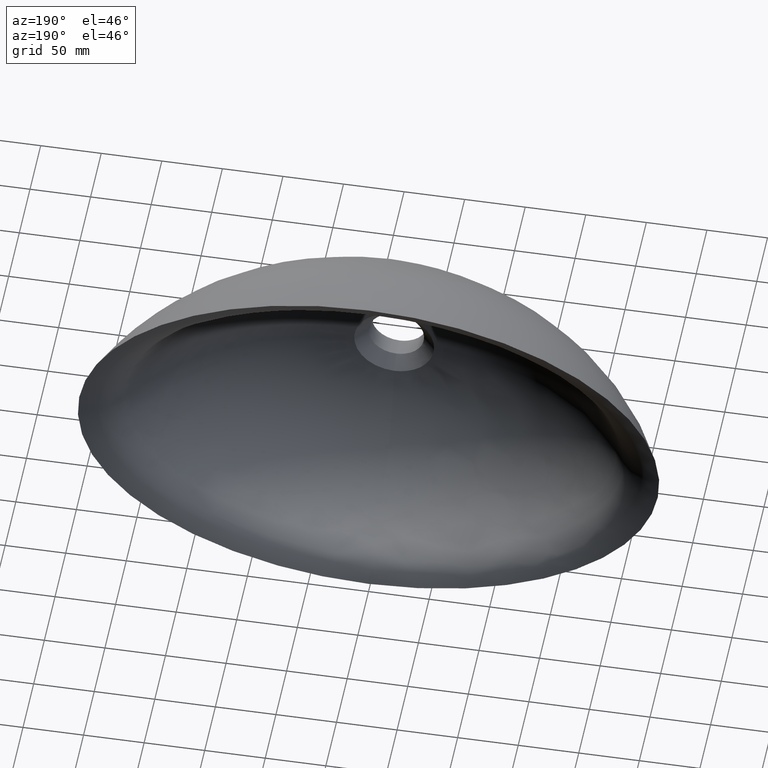
[diagram: clean part render]
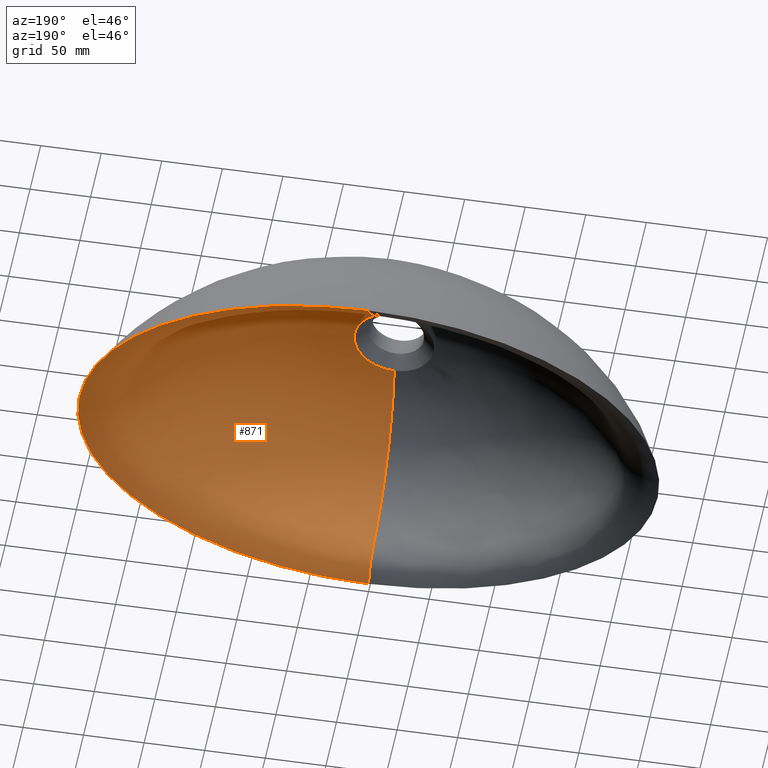
[diagram: same view with one face highlighted and labeled with its STEP entity id]
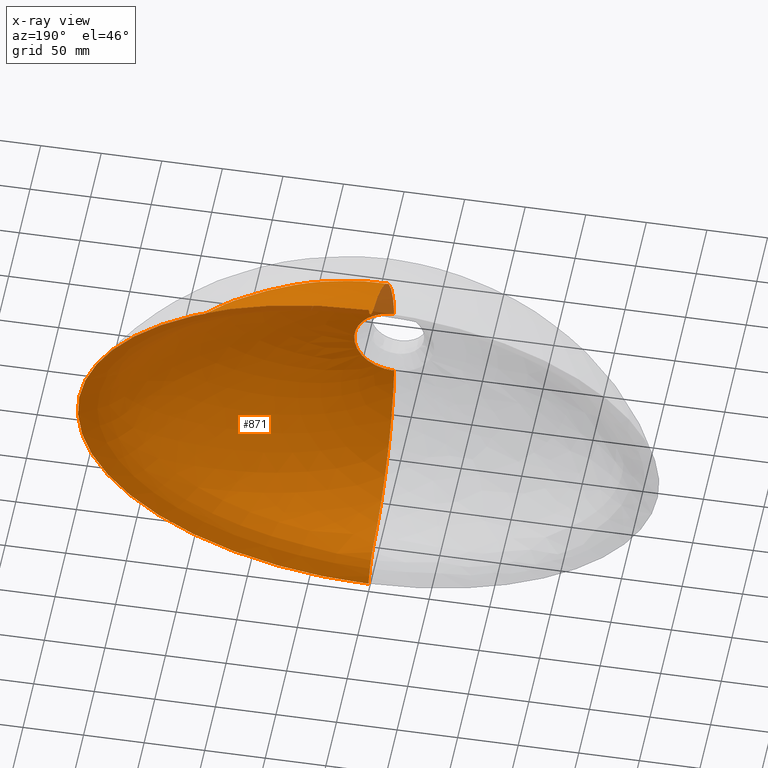
[diagram: x-ray of the same camera — body ghosted, the highlighted face saturated]
A machine part, auxiliary view. The second image highlights one B-rep face of the part: STEP entity #871.
The next image is the same camera in x-ray: the body ghosted, the highlighted face saturated — about 1% of this face is hidden behind the body in this view.
In plain terms, the highlighted face is a freeform B-spline surface patch.
Its self-contained STEP definition (entity closure, byte-faithful):
#10 = EDGE_CURVE ( 'NONE', #279, #1690, #1782, .T. ) ;
#22 = CARTESIAN_POINT ( 'NONE',  ( -1.320558246087344400E-013, -89.69102712270525000, 100.8377639535116500 ) ) ;
#36 = CARTESIAN_POINT ( 'NONE',  ( -1.595945597898662500E-013, -76.00668505586746400, 113.7130366713541600 ) ) ;
#68 = CARTESIAN_POINT ( 'NONE',  ( -3.118165448068310800E-013, 0.0000000000000000000, 160.0000000000000300 ) ) ;
#72 = CARTESIAN_POINT ( 'NONE',  ( 119.2038032442633000, -0.7541668695496025500, 137.9308143298175400 ) ) ;
#87 = CARTESIAN_POINT ( 'NONE',  ( -2.174909558005921900E-013, -43.38688400576848600, 132.4685475660608100 ) ) ;
#205 = CARTESIAN_POINT ( 'NONE',  ( -2.057815723377487400E-013, -60.46366696049965100, 124.3420252924159500 ) ) ;
#211 = CARTESIAN_POINT ( 'NONE',  ( -5.448115916739659800E-015, -120.0000000000000300, 33.00000000000000000 ) ) ;
#279 = VERTEX_POINT ( 'NONE', #2513 ) ;
#331 = CARTESIAN_POINT ( 'NONE',  ( -7.546047120499110900E-014, -110.3461389781540400, 69.53193003429275600 ) ) ;
#403 = CARTESIAN_POINT ( 'NONE',  ( -5.448115916739659800E-015, -120.0000000000000300, 33.00000000000000000 ) ) ;
#415 = CARTESIAN_POINT ( 'NONE',  ( 20.40196181145767100, -60.47735291521285500, 123.7769812046096300 ) ) ;
#490 = CARTESIAN_POINT ( 'NONE',  ( -116.5728268300296500, -2.451778030822814100, -134.4532953729050500 ) ) ;
#511 = CARTESIAN_POINT ( 'NONE',  ( -5.448115916739659800E-015, -120.0000000000000300, 33.00000000000000000 ) ) ;
#524 = CARTESIAN_POINT ( 'NONE',  ( -165.3181532844419300, -2.226490083097242500, -109.7495796190768100 ) ) ;
#529 = EDGE_CURVE ( 'NONE', #3196, #2507, #2951, .T. ) ;
#537 = CARTESIAN_POINT ( 'NONE',  ( -4.971068145928711400E-010, 0.0000000000000000000, -160.0000000000000300 ) ) ;
#634 = B_SPLINE_SURFACE_WITH_KNOTS ( 'NONE', 3, 3, ( 
 ( #3137, #3124, #3215, #1276, #1773, #3212, #2265, #2077, #2310, #2297, #1861, #2828, #2923, #2898, #1890, #2804, #2932, #2302, #3112, #3110, #3119, #3116, #2276, #2260, #1728, #1729, #2319, #1922, #783, #1963, #2358 ),
 ( #3229, #1844, #2094, #1865, #3178, #1696, #2389, #2603, #2084, #1899, #3049, #2388, #2450, #2371, #1964, #2066, #3179, #2101, #2193, #2362, #2242, #2377, #1864, #2381, #1867, #72, #2742, #2438, #2109, #2278, #2969 ),
 ( #1295, #2271, #1626, #1621, #1660, #1530, #1042, #1263, #878, #1206, #1254, #1103, #524, #490, #1260, #3230, #3201, #3194, #3192, #3199, #3188, #3186, #3191, #3181, #3175, #3173, #3168, #3165, #3162, #3102, #3100 ),
 ( #3095, #3093, #3086, #3083, #3089, #3080, #1815, #2352, #3224, #3144, #1718, #1645, #3071, #3067, #3063, #3060, #3059, #3106, #3054, #3050, #3042, #3037, #3036, #3033, #3029, #3028, #3022, #3018, #3017, #3009, #3008 ),
 ( #2999, #2995, #2994, #2991, #2981, #2978, #2970, #2967, #2965, #2959, #2954, #2953, #2947, #2945, #2940, #2936, #2935, #2930, #2919, #2918, #2915, #2913, #2908, #2904, #2903, #2900, #2892, #2888, #2884, #2875, #2873 ),
 ( #2867, #2864, #2861, #2855, #2850, #2848, #2844, #2841, #2839, #2835, #2832, #2826, #2822, #2819, #2816, #2726, #2814, #2809, #2802, #2798, #2796, #2793, #2792, #2785, #2781, #2779, #2772, #2768, #2762, #2759, #2758 ),
 ( #2748, #2747, #2738, #2737, #2728, #2725, #2717, #2713, #2712, #2701, #2700, #2697, #2691, #2688, #2686, #2684, #2680, #2677, #2676, #2673, #2671, #2666, #2663, #2661, #2659, #2656, #2653, #2652, #2650, #2648, #2644 ),
 ( #2640, #2639, #2635, #2633, #2628, #2625, #2624, #2620, #2615, #2612, #2610, #2608, #2600, #2599, #2594, #2591, #2589, #2578, #2574, #2569, #2567, #2562, #2558, #2554, #2552, #2547, #2543, #2539, #2534, #2531, #2528 ),
 ( #2526, #2521, #2517, #2512, #2504, #2499, #2498, #2492, #2488, #2486, #2479, #2476, #2475, #2466, #2462, #2454, #2449, #2442, #2437, #2430, #2427, #2426, #2419, #2415, #2414, #2403, #2402, #2399, #2397, #2387, #2385 ),
 ( #2378, #2373, #2365, #2361, #2356, #2348, #2347, #2345, #2343, #2339, #2334, #2332, #2327, #2321, #2308, #2299, #2288, #2281, #2253, #2248, #2244, #2237, #2234, #2231, #2226, #2220, #2212, #2201, #1704, #1881, #2218 ),
 ( #2132, #1612, #1806, #2188, #2189, #1761, #2081, #1537, #2070, #2072, #2097, #2105, #1541, #2119, #2882, #1886, #2052, #1495, #2088, #1676, #2080, #1528, #1565, #1450, #1487, #1714, #2114, #415, #2171, #1852, #1596 ),
 ( #1817, #1554, #2040, #1571, #1625, #1583, #1560, #1957, #1953, #1841, #2093, #2127, #1569, #1607, #1616, #2035, #2034, #1996, #1599, #2023, #2009, #1988, #2025, #2030, #1979, #1994, #2021, #2007, #2015, #2002, #2019 ),
 ( #1974, #2012, #1932, #1933, #1637, #1539, #1641, #1638, #1650, #1647, #1535, #1671, #1654, #1699, #1665, #1921, #1970, #1681, #1633, #1897, #1695, #1734, #1576, #1587, #1821, #2136, #2120, #1705, #1766, #2142, #1768 ),
 ( #1758, #2032, #2160, #1575, #1827, #2106, #1727, #1797, #1828, #1793, #1795, #1777, #1786, #1577, #1719, #1707, #1837, #1750, #1754, #1745, #1747, #1736, #1741, #1889, #1467, #1484, #1475, #1548, #1493, #1503, #2155 ),
 ( #1500, #1510, #1517, #2168, #1629, #1752, #1478, #1532, #1513, #1524, #1711, #1523, #1942, #1849, #1485, #1658, #1662, #1476, #1465, #1509, #1458, #2179, #2046, #1460, #1492, #1464, #1686, #1448, #1567, #1635, #1472 ),
 ( #1977, #1445, #1579, #1437, #1441, #1438, #1434, #1432, #1428, #1426, #1422, #1420, #1425, #1409, #1417, #1414, #1404, #1412, #1401, #1399, #1403, #1392, #1390, #2116, #1388, #1386, #1384, #1381, #1379, #1377, #1374 ),
 ( #1371, #1369, #1363, #1361, #1366, #1359, #1355, #1354, #1351, #1349, #1344, #1342, #1339, #1337, #1333, #1331, #1329, #1325, #1323, #1321, #1318, #1315, #1313, #1308, #1307, #1306, #1303, #1301, #1300, #1293, #1292 ),
 ( #1285, #1283, #1282, #1274, #1273, #1267, #1264, #1252, #1250, #1246, #1243, #1242, #1240, #1235, #1233, #1232, #1231, #1229, #1226, #1223, #1222, #1220, #1218, #1214, #1211, #1210, #1208, #1201, #1198, #1197, #1196 ) ),
 .UNSPECIFIED., .F., .T., .F.,
 ( 4, 1, 1, 1, 1, 1, 2, 1, 1, 1, 1, 1, 1, 1, 4 ),
 ( 4, 1, 1, 1, 1, 1, 1, 1, 1, 1, 1, 1, 1, 1, 1, 1, 1, 1, 1, 1, 1, 1, 1, 1, 1, 1, 1, 1, 4 ),
 ( 0.0000000000000000000, 0.04507914127680634500, 0.06761871191520951700, 0.09015828255361269000, 0.1126978531920158500, 0.1352374238304190300, 0.1803165651072253800, 0.2827769944688222100, 0.3852374238304190900, 0.4876978531920159700, 0.5901582825536126900, 0.6926187119152095200, 0.7950791412768065700, 0.8975395706384033900, 1.000000000000000000 ),
 ( 0.0000000000000000000, 0.006250000000000088800, 0.008333333333333303700, 0.04166666666666663000, 0.08333333333333337000, 0.1249999999999998900, 0.1666666666666666300, 0.2083333333333333700, 0.2499999999999998300, 0.2916666666666666300, 0.3333333333333333700, 0.3750000000000001100, 0.4166666666666666300, 0.4583333333333333700, 0.5000000000009839900, 0.5416666666666667400, 0.5833333333333332600, 0.6250000000000000000, 0.6666666666666667400, 0.7083333333333332600, 0.7499999999999998900, 0.7916666666666666300, 0.8333333333333333700, 0.8750000000000000000, 0.9166666666666666300, 0.9583333333333333700, 0.9916666666666667000, 0.9937500000000000200, 1.000000000000000000 ),
 .UNSPECIFIED. ) ;
#783 = CARTESIAN_POINT ( 'NONE',  ( 7.369015889910233600, 0.0000000000000000000, 159.9436537540059600 ) ) ;
#831 = B_SPLINE_CURVE_WITH_KNOTS ( 'NONE', 3,
 ( #1083, #1085, #1074, #1068, #1065, #1064, #1058, #1056, #1055, #1046, #1043, #1040, #1034, #1031, #1030, #1028, #1026, #1022 ),
 .UNSPECIFIED., .F., .F.,
 ( 4, 1, 1, 1, 1, 1, 2, 1, 1, 1, 1, 1, 1, 1, 4 ),
 ( 0.0000000000000000000, 0.04507914127680634500, 0.06761871191520951700, 0.09015828255361269000, 0.1126978531920158500, 0.1352374238304190300, 0.1803165651072253800, 0.2827769944688222100, 0.3852374238304190900, 0.4876978531920159700, 0.5901582825536126900, 0.6926187119152095200, 0.7950791412768065700, 0.8975395706384033900, 1.000000000000000000 ),
 .UNSPECIFIED. ) ;
#871 = ADVANCED_FACE ( 'NONE', ( #3035 ), #634, .T. ) ;
#878 = CARTESIAN_POINT ( 'NONE',  ( -225.6260782627913100, -1.825978176031859400, 40.38748943737241600 ) ) ;
#1001 = CARTESIAN_POINT ( 'NONE',  ( -2.886146183156412800E-013, -2.677065978550764200, 153.3529548309622900 ) ) ;
#1022 = CARTESIAN_POINT ( 'NONE',  ( -6.908711260444515000E-011, -120.0000000000000000, -33.00000000000001400 ) ) ;
#1026 = CARTESIAN_POINT ( 'NONE',  ( -9.205140299526871800E-011, -119.2745504031701000, -39.31296023266396800 ) ) ;
#1028 = CARTESIAN_POINT ( 'NONE',  ( -1.381869283998745700E-010, -116.8327630824318100, -51.76734199862837500 ) ) ;
#1030 = CARTESIAN_POINT ( 'NONE',  ( -2.055080386328463600E-010, -110.3461389781541900, -69.53193003429258600 ) ) ;
#1031 = CARTESIAN_POINT ( 'NONE',  ( -2.684548142824530100E-010, -101.2240497417568600, -86.00458308663225200 ) ) ;
#1034 = CARTESIAN_POINT ( 'NONE',  ( -3.245650311008117900E-010, -89.69102712270537800, -100.8377639535112700 ) ) ;
#1040 = CARTESIAN_POINT ( 'NONE',  ( -3.714273463920110100E-010, -76.00668505586753600, -113.7130366713546300 ) ) ;
#1042 = CARTESIAN_POINT ( 'NONE',  ( -165.3181532844471900, -2.226490083100003000, 109.7495796190758600 ) ) ;
#1043 = CARTESIAN_POINT ( 'NONE',  ( -4.070203217917971100E-010, -60.46366696049962300, -124.3420252924155300 ) ) ;
#1046 = CARTESIAN_POINT ( 'NONE',  ( -4.294226573845957400E-010, -43.38688400576850800, -132.4685475660609500 ) ) ;
#1055 = CARTESIAN_POINT ( 'NONE',  ( -4.345708864263333700E-010, -31.21691184184210100, -136.0693430366981700 ) ) ;
#1056 = CARTESIAN_POINT ( 'NONE',  ( -4.345244450190145200E-010, -22.26476801525046800, -137.9631870328798000 ) ) ;
#1058 = CARTESIAN_POINT ( 'NONE',  ( -4.369093432567685300E-010, -18.11875222314843700, -139.3841232326810200 ) ) ;
#1064 = CARTESIAN_POINT ( 'NONE',  ( -4.439785401240797400E-010, -12.95106980682317000, -142.4319642623789300 ) ) ;
#1065 = CARTESIAN_POINT ( 'NONE',  ( -4.511400841594546500E-010, -9.380831405176923700, -145.2442220442154100 ) ) ;
#1068 = CARTESIAN_POINT ( 'NONE',  ( -4.599877837921853900E-010, -6.225949528058498200, -148.5156309788367500 ) ) ;
#1074 = CARTESIAN_POINT ( 'NONE',  ( -4.741084920970559100E-010, -2.677065978550758900, -153.3529548309622300 ) ) ;
#1083 = CARTESIAN_POINT ( 'NONE',  ( -4.971068145928711400E-010, 0.0000000000000000000, -160.0000000000000300 ) ) ;
#1085 = CARTESIAN_POINT ( 'NONE',  ( -4.871545560690668800E-010, -0.8490198302049254400, -157.3362642479899000 ) ) ;
#1103 = CARTESIAN_POINT ( 'NONE',  ( -202.5495916763063900, -2.001202135372114100, -77.39574260809152400 ) ) ;
#1196 = CARTESIAN_POINT ( 'NONE',  ( -5.448115916739659800E-015, -120.0000000000000300, 33.00000000000000000 ) ) ;
#1197 = CARTESIAN_POINT ( 'NONE',  ( 0.4388568511917208000, -120.0000000000000300, 33.00000000000000000 ) ) ;
#1198 = CARTESIAN_POINT ( 'NONE',  ( 1.023999319447356000, -120.0000000000000300, 32.98756784255958500 ) ) ;
#1201 = CARTESIAN_POINT ( 'NONE',  ( 3.946321791925883300, -120.0000000000000400, 32.84426857135494500 ) ) ;
#1206 = CARTESIAN_POINT ( 'NONE',  ( -233.7581978281122900, -1.750882193456176000, -1.714700799998694300E-013 ) ) ;
#1208 = CARTESIAN_POINT ( 'NONE',  ( 9.317081241428114800, -120.0000000000000000, 31.94578056316645800 ) ) ;
#1210 = CARTESIAN_POINT ( 'NONE',  ( 16.87630028773804700, -120.0000000000000300, 28.79005539188281300 ) ) ;
#1211 = CARTESIAN_POINT ( 'NONE',  ( 23.61951603177940500, -120.0000000000000600, 23.61951603177941200 ) ) ;
#1213 = EDGE_CURVE ( 'NONE', #2507, #279, #831, .T. ) ;
#1214 = CARTESIAN_POINT ( 'NONE',  ( 28.79005539188281300, -120.0000000000000700, 16.87630028773805100 ) ) ;
#1218 = CARTESIAN_POINT ( 'NONE',  ( 32.17118950397242800, -120.0000000000000300, 8.777137023834557200 ) ) ;
#1220 = CARTESIAN_POINT ( 'NONE',  ( 33.41440524801380000, -120.0000000000000100, -1.040834085586084300E-014 ) ) ;
#1222 = CARTESIAN_POINT ( 'NONE',  ( 32.17118950397243500, -120.0000000000000300, -8.777137023834559000 ) ) ;
#1223 = CARTESIAN_POINT ( 'NONE',  ( 28.79005539188281700, -120.0000000000000300, -16.87630028773804700 ) ) ;
#1226 = CARTESIAN_POINT ( 'NONE',  ( 23.61951603177941200, -120.0000000000000000, -23.61951603177940500 ) ) ;
#1229 = CARTESIAN_POINT ( 'NONE',  ( 16.87630028773804700, -119.9999999999999900, -28.79005539188280900 ) ) ;
#1231 = CARTESIAN_POINT ( 'NONE',  ( 8.777137023834562500, -120.0000000000000000, -32.17118950397243500 ) ) ;
#1232 = CARTESIAN_POINT ( 'NONE',  ( 1.387778780781445700E-014, -120.0000000000000000, -33.41440524801380000 ) ) ;
#1233 = CARTESIAN_POINT ( 'NONE',  ( -8.777137023834550100, -120.0000000000000000, -32.17118950397242800 ) ) ;
#1235 = CARTESIAN_POINT ( 'NONE',  ( -16.87630028773803700, -120.0000000000000000, -28.79005539188281300 ) ) ;
#1240 = CARTESIAN_POINT ( 'NONE',  ( -23.61951603177939800, -120.0000000000000300, -23.61951603177940800 ) ) ;
#1242 = CARTESIAN_POINT ( 'NONE',  ( -28.79005539188280600, -120.0000000000000300, -16.87630028773804700 ) ) ;
#1243 = CARTESIAN_POINT ( 'NONE',  ( -32.17118950397242800, -120.0000000000000300, -8.777137023834559000 ) ) ;
#1246 = CARTESIAN_POINT ( 'NONE',  ( -33.41440524801378600, -120.0000000000000300, -6.071532165918824800E-015 ) ) ;
#1250 = CARTESIAN_POINT ( 'NONE',  ( -32.17118950397242100, -120.0000000000000300, 8.777137023834550100 ) ) ;
#1252 = CARTESIAN_POINT ( 'NONE',  ( -28.79005539188280600, -120.0000000000000400, 16.87630028773805100 ) ) ;
#1254 = CARTESIAN_POINT ( 'NONE',  ( -225.6260782627894600, -1.825978176030675900, -40.38748943737289200 ) ) ;
#1260 = CARTESIAN_POINT ( 'NONE',  ( -60.82584771920700500, -2.627001990166964300, -149.7586325476856600 ) ) ;
#1263 = CARTESIAN_POINT ( 'NONE',  ( -202.5495916763100300, -2.001202135374283000, 77.39574260809078500 ) ) ;
#1264 = CARTESIAN_POINT ( 'NONE',  ( -23.61951603177939800, -120.0000000000000300, 23.61951603177940500 ) ) ;
#1267 = CARTESIAN_POINT ( 'NONE',  ( -16.87630028773804400, -120.0000000000000300, 28.79005539188280600 ) ) ;
#1273 = CARTESIAN_POINT ( 'NONE',  ( -9.317081241428123700, -120.0000000000000000, 31.94578056316644400 ) ) ;
#1274 = CARTESIAN_POINT ( 'NONE',  ( -3.946321791925900600, -120.0000000000001100, 32.84426857135493100 ) ) ;
#1276 = CARTESIAN_POINT ( 'NONE',  ( -28.39700889706448100, 0.0000000000000000000, 159.2908634255087700 ) ) ;
#1282 = CARTESIAN_POINT ( 'NONE',  ( -1.023999319447374200, -120.0000000000000600, 32.98756784255958500 ) ) ;
#1283 = CARTESIAN_POINT ( 'NONE',  ( -0.4388568511917394500, -120.0000000000000400, 33.00000000000000000 ) ) ;
#1285 = CARTESIAN_POINT ( 'NONE',  ( -5.448115916739659800E-015, -120.0000000000000300, 33.00000000000000000 ) ) ;
#1291 = ORIENTED_EDGE ( 'NONE', *, *, #2192, .F. ) ;
#1292 = CARTESIAN_POINT ( 'NONE',  ( -1.610040226140974100E-014, -119.2745504031701400, 39.31296023266396800 ) ) ;
#1293 = CARTESIAN_POINT ( 'NONE',  ( 0.5494034079225587100, -119.2745504031701400, 39.31296023266397600 ) ) ;
#1295 = CARTESIAN_POINT ( 'NONE',  ( -2.886146183156412800E-013, -2.677065978550764200, 153.3529548309622900 ) ) ;
#1300 = CARTESIAN_POINT ( 'NONE',  ( 1.281941285152660600, -119.2749080654303500, 39.29820514446623000 ) ) ;
#1301 = CARTESIAN_POINT ( 'NONE',  ( 4.940358855652651600, -119.2789615710459500, 39.12803919480178600 ) ) ;
#1303 = CARTESIAN_POINT ( 'NONE',  ( 11.66364849367458900, -119.3039581890083600, 38.06054253520466800 ) ) ;
#1306 = CARTESIAN_POINT ( 'NONE',  ( 21.12177318679596300, -119.3818490812282500, 34.29811042200544300 ) ) ;
#1307 = CARTESIAN_POINT ( 'NONE',  ( 29.65875054832274000, -119.4891477592862300, 28.09406451404845500 ) ) ;
#1308 = CARTESIAN_POINT ( 'NONE',  ( 36.20962187754766100, -119.5964464373440800, 20.01658927855979900 ) ) ;
#1313 = CARTESIAN_POINT ( 'NONE',  ( 40.45141025998911000, -119.6799009647222500, 10.40939166582453100 ) ) ;
#1315 = CARTESIAN_POINT ( 'NONE',  ( 41.99973973749988700, -119.7156671907413100, 1.785252631027491100E-014 ) ) ;
#1318 = CARTESIAN_POINT ( 'NONE',  ( 40.45141025998703600, -119.6799009647217000, -10.40939166582463900 ) ) ;
#1321 = CARTESIAN_POINT ( 'NONE',  ( 36.20962187754362600, -119.5964464373429900, -20.01658927856022500 ) ) ;
#1323 = CARTESIAN_POINT ( 'NONE',  ( 29.65875054831695600, -119.4891477592848200, -28.09406451404920400 ) ) ;
#1325 = CARTESIAN_POINT ( 'NONE',  ( 21.12177318678879000, -119.3818490812268900, -34.29811042200635300 ) ) ;
#1329 = CARTESIAN_POINT ( 'NONE',  ( 10.98806815844616800, -119.2983945538494800, -38.32928768614650000 ) ) ;
#1331 = CARTESIAN_POINT ( 'NONE',  ( -5.641547715920119400E-012, -119.2626283278303400, -39.80479650592229000 ) ) ;
#1333 = CARTESIAN_POINT ( 'NONE',  ( -10.98806815845689000, -119.2983945538497600, -38.32928768614811300 ) ) ;
#1337 = CARTESIAN_POINT ( 'NONE',  ( -21.12177318680220800, -119.3818490812289900, -34.29811042200393000 ) ) ;
#1339 = CARTESIAN_POINT ( 'NONE',  ( -29.65875054832689600, -119.4891477592868200, -28.09406451404694800 ) ) ;
#1342 = CARTESIAN_POINT ( 'NONE',  ( -36.20962187754974300, -119.5964464373444100, -20.01658927855861600 ) ) ;
#1344 = CARTESIAN_POINT ( 'NONE',  ( -40.45141025998956500, -119.6799009647223600, -10.40939166582389100 ) ) ;
#1349 = CARTESIAN_POINT ( 'NONE',  ( -41.99973973749964500, -119.7156671907413300, -4.306617154605518700E-014 ) ) ;
#1351 = CARTESIAN_POINT ( 'NONE',  ( -40.45141025998748300, -119.6799009647218200, 10.40939166582397300 ) ) ;
#1354 = CARTESIAN_POINT ( 'NONE',  ( -36.20962187754570000, -119.5964464373433900, 20.01658927855902800 ) ) ;
#1355 = CARTESIAN_POINT ( 'NONE',  ( -29.65875054832112700, -119.4891477592855200, 28.09406451404768400 ) ) ;
#1359 = CARTESIAN_POINT ( 'NONE',  ( -21.12177318679505300, -119.3818490812277300, 34.29811042200483900 ) ) ;
#1361 = CARTESIAN_POINT ( 'NONE',  ( -4.940358855652649900, -119.2789615710458700, 39.12803919480164400 ) ) ;
#1363 = CARTESIAN_POINT ( 'NONE',  ( -1.281941285152698600, -119.2749080654303400, 39.29820514446619500 ) ) ;
#1366 = CARTESIAN_POINT ( 'NONE',  ( -11.66364849367434100, -119.3039581890080300, 38.06054253520432000 ) ) ;
#1367 = CARTESIAN_POINT ( 'NONE',  ( -2.651958513899543800E-013, -18.11875222314844400, 139.3841232326811300 ) ) ;
#1369 = CARTESIAN_POINT ( 'NONE',  ( -0.5494034079226005600, -119.2745504031701400, 39.31296023266395400 ) ) ;
#1371 = CARTESIAN_POINT ( 'NONE',  ( -1.610040226140974100E-014, -119.2745504031701400, 39.31296023266396800 ) ) ;
#1374 = CARTESIAN_POINT ( 'NONE',  ( -3.621235256101584800E-014, -116.8327630824320100, 51.76734199862819000 ) ) ;
#1377 = CARTESIAN_POINT ( 'NONE',  ( 0.7709239859515992800, -116.8327630824320200, 51.76734199862821100 ) ) ;
#1379 = CARTESIAN_POINT ( 'NONE',  ( 1.798822633887118700, -116.8338147816227200, 51.74801252337388000 ) ) ;
#1381 = CARTESIAN_POINT ( 'NONE',  ( 6.932277789409307700, -116.8457340391168100, 51.52493517305762800 ) ) ;
#1384 = CARTESIAN_POINT ( 'NONE',  ( 16.36587057822927300, -116.9192361269962700, 50.12456340082092500 ) ) ;
#1386 = CARTESIAN_POINT ( 'NONE',  ( 29.62934260697596800, -117.1482728396251100, 45.16650660224307500 ) ) ;
#1388 = CARTESIAN_POINT ( 'NONE',  ( 41.76096761292965500, -117.4637825968176200, 36.92403738180620100 ) ) ;
#1390 = CARTESIAN_POINT ( 'NONE',  ( 57.04509901615085000, -118.0246888318257800, 13.63101627496356000 ) ) ;
#1392 = CARTESIAN_POINT ( 'NONE',  ( 59.20508084249164700, -118.1298587508892300, 7.697634585651163400E-014 ) ) ;
#1399 = CARTESIAN_POINT ( 'NONE',  ( 51.07820240795024300, -117.7792923540067400, -26.21378039245833200 ) ) ;
#1401 = CARTESIAN_POINT ( 'NONE',  ( 41.76096761291213300, -117.4637825968135900, -36.92403738180846800 ) ) ;
#1403 = CARTESIAN_POINT ( 'NONE',  ( 57.04509901614454000, -118.0246888318240900, -13.63101627496387500 ) ) ;
#1404 = CARTESIAN_POINT ( 'NONE',  ( 15.41847971901651300, -116.9028763618075000, -50.47871031500240200 ) ) ;
#1409 = CARTESIAN_POINT ( 'NONE',  ( -29.62934260699480800, -117.1482728396271300, -45.16650660223881200 ) ) ;
#1412 = CARTESIAN_POINT ( 'NONE',  ( 29.62934260695423900, -117.1482728396210400, -45.16650660224586700 ) ) ;
#1414 = CARTESIAN_POINT ( 'NONE',  ( -1.709724813362005100E-011, -116.7977064427437900, -52.41165784044017800 ) ) ;
#1417 = CARTESIAN_POINT ( 'NONE',  ( -15.41847971904895500, -116.9028763618082700, -50.47871031500712700 ) ) ;
#1420 = CARTESIAN_POINT ( 'NONE',  ( -51.07820240796861100, -117.7792923540106400, -26.21378039245365300 ) ) ;
#1422 = CARTESIAN_POINT ( 'NONE',  ( -57.04509901615200100, -118.0246888318257400, -13.63101627496170000 ) ) ;
#1425 = CARTESIAN_POINT ( 'NONE',  ( -41.76096761294212500, -117.4637825968192100, -36.92403738180190200 ) ) ;
#1426 = CARTESIAN_POINT ( 'NONE',  ( -59.20508084249067300, -118.1298587508888100, -1.057797477124785600E-013 ) ) ;
#1428 = CARTESIAN_POINT ( 'NONE',  ( -57.04509901614569100, -118.0246888318241400, 13.63101627496195300 ) ) ;
#1432 = CARTESIAN_POINT ( 'NONE',  ( -51.07820240795636800, -117.7792923540077100, 26.21378039245483300 ) ) ;
#1434 = CARTESIAN_POINT ( 'NONE',  ( -41.76096761292464500, -117.4637825968154600, 36.92403738180397700 ) ) ;
#1437 = CARTESIAN_POINT ( 'NONE',  ( -6.932277789409259800, -116.8457340391164500, 51.52493517305720200 ) ) ;
#1438 = CARTESIAN_POINT ( 'NONE',  ( -29.62934260697314700, -117.1482728396234400, 45.16650660224133400 ) ) ;
#1441 = CARTESIAN_POINT ( 'NONE',  ( -16.36587057822848100, -116.9192361269953200, 50.12456340081991600 ) ) ;
#1445 = CARTESIAN_POINT ( 'NONE',  ( -0.7709239859516854300, -116.8327630824319800, 51.76734199862816200 ) ) ;
#1448 = CARTESIAN_POINT ( 'NONE',  ( 9.884540322974736200, -110.3693511335893600, 69.20807048868714200 ) ) ;
#1450 = CARTESIAN_POINT ( 'NONE',  ( 151.3359912434038700, -61.46237176388012100, 62.56547349275119500 ) ) ;
#1453 = CARTESIAN_POINT ( 'NONE',  ( 32.17118950397242800, -120.0000000000000300, 8.777137023834557200 ) ) ;
#1458 = CARTESIAN_POINT ( 'NONE',  ( 81.62765059449830600, -112.4791478559627800, -18.23420703535201400 ) ) ;
#1460 = CARTESIAN_POINT ( 'NONE',  ( 73.10828953980269800, -112.0399989693581900, 35.06381065406849000 ) ) ;
#1464 = CARTESIAN_POINT ( 'NONE',  ( 42.23670595930457200, -110.9107589752228300, 60.67947523338450800 ) ) ;
#1465 = CARTESIAN_POINT ( 'NONE',  ( 59.69430638417558300, -111.4753789722838100, -49.53220181311191100 ) ) ;
#1467 = CARTESIAN_POINT ( 'NONE',  ( 77.11153492587979500, -102.6526924744225900, 61.24318917265593100 ) ) ;
#1472 = CARTESIAN_POINT ( 'NONE',  ( -7.546047120499110900E-014, -110.3461389781540400, 69.53193003429275600 ) ) ;
#1475 = CARTESIAN_POINT ( 'NONE',  ( 30.10667540014705100, -101.4198267088267300, 83.30070730627659300 ) ) ;
#1476 = CARTESIAN_POINT ( 'NONE',  ( 42.23670595926267200, -110.9107589752160000, -60.67947523338919800 ) ) ;
#1478 = CARTESIAN_POINT ( 'NONE',  ( -59.69430638420014600, -111.4753789722874700, 49.53220181310395300 ) ) ;
#1484 = CARTESIAN_POINT ( 'NONE',  ( 54.48279215090668300, -101.9383711080904600, 75.07994429555111500 ) ) ;
#1485 = CARTESIAN_POINT ( 'NONE',  ( -21.98490180270898300, -110.4716100886144300, -67.81133143982627600 ) ) ;
#1487 = CARTESIAN_POINT ( 'NONE',  ( 123.4497204824250600, -61.12947016275367000, 88.68134781294071400 ) ) ;
#1492 = CARTESIAN_POINT ( 'NONE',  ( 59.69430638420937600, -111.4753789722907000, 49.53220181310802400 ) ) ;
#1493 = CARTESIAN_POINT ( 'NONE',  ( 3.309311157093966800, -101.2264308129783400, 85.97283291029535200 ) ) ;
#1495 = CARTESIAN_POINT ( 'NONE',  ( 87.08160067772324500, -60.79656856162284100, -108.7397952184927700 ) ) ;
#1500 = CARTESIAN_POINT ( 'NONE',  ( -7.546047120499110900E-014, -110.3461389781540400, 69.53193003429275600 ) ) ;
#1501 = CARTESIAN_POINT ( 'NONE',  ( 32.17118950397243500, -120.0000000000000300, -8.777137023834559000 ) ) ;
#1503 = CARTESIAN_POINT ( 'NONE',  ( 1.418276210183067500, -101.2240497417571400, 86.00458308663198200 ) ) ;
#1505 = B_SPLINE_CURVE_WITH_KNOTS ( 'NONE', 3,
 ( #1511, #2963, #1001, #2771, #2270, #2329, #1367, #2824, #2580, #87, #205, #36, #22, #2471, #331, #2843, #2801, #211 ),
 .UNSPECIFIED., .F., .F.,
 ( 4, 1, 1, 1, 1, 1, 2, 1, 1, 1, 1, 1, 1, 1, 4 ),
 ( 0.0000000000000000000, 0.04507914127680634500, 0.06761871191520951700, 0.09015828255361269000, 0.1126978531920158500, 0.1352374238304190300, 0.1803165651072253800, 0.2827769944688222100, 0.3852374238304190900, 0.4876978531920159700, 0.5901582825536126900, 0.6926187119152095200, 0.7950791412768065700, 0.8975395706384033900, 1.000000000000000000 ),
 .UNSPECIFIED. ) ;
#1509 = CARTESIAN_POINT ( 'NONE',  ( 73.10828953977903700, -112.0399989693527700, -35.06381065407071400 ) ) ;
#1510 = CARTESIAN_POINT ( 'NONE',  ( -1.099245090133977200, -110.3461389781540200, 69.53193003429269900 ) ) ;
#1511 = CARTESIAN_POINT ( 'NONE',  ( -3.118165448068310800E-013, 0.0000000000000000000, 160.0000000000000300 ) ) ;
#1513 = CARTESIAN_POINT ( 'NONE',  ( -81.62765059450131800, -112.4791478559635900, 18.23420703534853300 ) ) ;
#1517 = CARTESIAN_POINT ( 'NONE',  ( -2.564905210312476800, -110.3480210448108900, 69.50612105537560100 ) ) ;
#1518 = CARTESIAN_POINT ( 'NONE',  ( -6.908711260444515000E-011, -120.0000000000000000, -33.00000000000001400 ) ) ;
#1523 = CARTESIAN_POINT ( 'NONE',  ( -73.10828953981507500, -112.0399989693605000, -35.06381065406215900 ) ) ;
#1524 = CARTESIAN_POINT ( 'NONE',  ( -84.69191173455759300, -112.6673545216538900, -2.020185163070845900E-013 ) ) ;
#1528 = CARTESIAN_POINT ( 'NONE',  ( 174.9914414619570100, -61.83226243179741700, 2.085884476464551600E-013 ) ) ;
#1530 = CARTESIAN_POINT ( 'NONE',  ( -116.5728268300362500, -2.451778030825576800, 134.4532953729042200 ) ) ;
#1532 = CARTESIAN_POINT ( 'NONE',  ( -73.10828953979148500, -112.0399989693550100, 35.06381065406442600 ) ) ;
#1535 = CARTESIAN_POINT ( 'NONE',  ( -128.2185564754294700, -92.47535173127195700, -26.38475301809407700 ) ) ;
#1537 = CARTESIAN_POINT ( 'NONE',  ( -151.3359912433865900, -61.46237176387778300, 62.56547349274593700 ) ) ;
#1539 = CARTESIAN_POINT ( 'NONE',  ( -66.16433402605044000, -90.42805422497049500, 88.06864564245592000 ) ) ;
#1541 = CARTESIAN_POINT ( 'NONE',  ( -123.4497204824626000, -61.12947016275543900, -88.68134781293042600 ) ) ;
#1548 = CARTESIAN_POINT ( 'NONE',  ( 12.75324461036645700, -101.2534162868178400, 85.60599964902930000 ) ) ;
#1554 = CARTESIAN_POINT ( 'NONE',  ( -2.007840128986250900, -76.00668505586742200, 113.7130366713540900 ) ) ;
#1560 = CARTESIAN_POINT ( 'NONE',  ( -109.2516408261092400, -77.23412300624326600, 81.02846075288613300 ) ) ;
#1565 = CARTESIAN_POINT ( 'NONE',  ( 168.7887395262875700, -61.72129523142259400, 32.58490585576726100 ) ) ;
#1567 = CARTESIAN_POINT ( 'NONE',  ( 2.564905210312326200, -110.3480210448110300, 69.50612105537580000 ) ) ;
#1569 = CARTESIAN_POINT ( 'NONE',  ( -109.2516408261666800, -77.23412300625084000, -81.02846075288056200 ) ) ;
#1571 = CARTESIAN_POINT ( 'NONE',  ( -18.05443772860700200, -76.03191572484716700, 113.1922807232976700 ) ) ;
#1575 = CARTESIAN_POINT ( 'NONE',  ( -12.75324461036632700, -101.2534162868170300, 85.60599964902827700 ) ) ;
#1576 = CARTESIAN_POINT ( 'NONE',  ( 128.2185564754246300, -92.47535173127158700, 26.38475301809922500 ) ) ;
#1577 = CARTESIAN_POINT ( 'NONE',  ( -54.48279215095742200, -101.9383711080955500, -75.07994429554065600 ) ) ;
#1579 = CARTESIAN_POINT ( 'NONE',  ( -1.798822633887193800, -116.8338147816226200, 51.74801252337377400 ) ) ;
#1583 = CARTESIAN_POINT ( 'NONE',  ( -77.08891870593548400, -76.62040403105486100, 99.37137052769435300 ) ) ;
#1587 = CARTESIAN_POINT ( 'NONE',  ( 114.8884605020551200, -91.90210842950894200, 50.71085763112594700 ) ) ;
#1596 = CARTESIAN_POINT ( 'NONE',  ( -2.057815723377487400E-013, -60.46366696049965100, 124.3420252924159500 ) ) ;
#1599 = CARTESIAN_POINT ( 'NONE',  ( 109.2516408260675100, -77.23412300623942900, -81.02846075289836800 ) ) ;
#1607 = CARTESIAN_POINT ( 'NONE',  ( -77.08891870600665200, -76.62040403106240700, -99.37137052768747500 ) ) ;
#1612 = CARTESIAN_POINT ( 'NONE',  ( -2.268926569098966200, -60.46366696049961600, 124.3420252924159000 ) ) ;
#1616 = CARTESIAN_POINT ( 'NONE',  ( -40.15680257977450700, -76.14306705035475900, -110.9496667185141400 ) ) ;
#1621 = CARTESIAN_POINT ( 'NONE',  ( -27.34623713060367900, -2.667804140699950600, 152.6743791626397200 ) ) ;
#1625 = CARTESIAN_POINT ( 'NONE',  ( -42.61894365480124900, -76.17488951573319900, 110.1777803057851300 ) ) ;
#1626 = CARTESIAN_POINT ( 'NONE',  ( -7.096348900575026900, -2.676315018725046200, 153.2990399967131900 ) ) ;
#1629 = CARTESIAN_POINT ( 'NONE',  ( -23.33502207978526100, -110.5008866810532700, 67.33587435939192300 ) ) ;
#1633 = CARTESIAN_POINT ( 'NONE',  ( 93.72227158685191700, -91.16508132723285500, -71.81565418119566900 ) ) ;
#1635 = CARTESIAN_POINT ( 'NONE',  ( 1.099245090133806700, -110.3461389781540700, 69.53193003429279900 ) ) ;
#1637 = CARTESIAN_POINT ( 'NONE',  ( -36.56971116084589800, -89.89302714332551100, 97.68375320014845900 ) ) ;
#1638 = CARTESIAN_POINT ( 'NONE',  ( -114.8884605020366400, -91.90210842950412500, 50.71085763111980100 ) ) ;
#1641 = CARTESIAN_POINT ( 'NONE',  ( -93.72227158689227600, -91.16508132723704700, 71.81565418118378800 ) ) ;
#1645 = CARTESIAN_POINT ( 'NONE',  ( -196.9121688652855100, -4.943474293325508000, -74.98136033412713200 ) ) ;
#1647 = CARTESIAN_POINT ( 'NONE',  ( -132.9810535024954000, -92.72102743202521000, -3.216376675052706400E-013 ) ) ;
#1650 = CARTESIAN_POINT ( 'NONE',  ( -128.2185564754094900, -92.47535173126804900, 26.38475301809477700 ) ) ;
#1652 = CARTESIAN_POINT ( 'NONE',  ( 23.61951603177941200, -120.0000000000000000, -23.61951603177940500 ) ) ;
#1654 = CARTESIAN_POINT ( 'NONE',  ( -93.72227158694768400, -91.16508132724621300, -71.81565418117767800 ) ) ;
#1658 = CARTESIAN_POINT ( 'NONE',  ( -3.298626136622215200E-011, -110.2834034229244800, -70.39222933152788600 ) ) ;
#1660 = CARTESIAN_POINT ( 'NONE',  ( -64.54231299326707500, -2.615320392878093700, 148.7382767360344100 ) ) ;
#1662 = CARTESIAN_POINT ( 'NONE',  ( 21.98490180264634100, -110.4716100886128300, -67.81133143981762100 ) ) ;
#1665 = CARTESIAN_POINT ( 'NONE',  ( -34.45580952766938100, -89.85481092321009600, -98.37054659713393800 ) ) ;
#1669 = CARTESIAN_POINT ( 'NONE',  ( -3.118165448068310800E-013, 0.0000000000000000000, 160.0000000000000300 ) ) ;
#1671 = CARTESIAN_POINT ( 'NONE',  ( -114.8884605020754300, -91.90210842951130100, -50.71085763111640400 ) ) ;
#1676 = CARTESIAN_POINT ( 'NONE',  ( 151.3359912433675200, -61.46237176387687400, -62.56547349275388800 ) ) ;
#1681 = CARTESIAN_POINT ( 'NONE',  ( 66.16433402599014400, -90.42805422496526500, -88.06864564246765800 ) ) ;
#1686 = CARTESIAN_POINT ( 'NONE',  ( 23.33502207978672200, -110.5008866810547500, 67.33587435939374200 ) ) ;
#1690 = VERTEX_POINT ( 'NONE', #511 ) ;
#1695 = CARTESIAN_POINT ( 'NONE',  ( 128.2185564754046000, -92.47535173126775000, -26.38475301809999600 ) ) ;
#1696 = CARTESIAN_POINT ( 'NONE',  ( -119.2038032442643100, -0.7541668695500582900, 137.9308143298177100 ) ) ;
#1699 = CARTESIAN_POINT ( 'NONE',  ( -66.16433402611910700, -90.42805422497963300, -88.06864564244828800 ) ) ;
#1704 = CARTESIAN_POINT ( 'NONE',  ( 5.838359777996334500, -43.38651288642791600, 132.4211270365997000 ) ) ;
#1705 = CARTESIAN_POINT ( 'NONE',  ( 15.49137786228223700, -89.72132712579893600, 100.3729955415445800 ) ) ;
#1707 = CARTESIAN_POINT ( 'NONE',  ( -4.592971413661554100E-011, -101.1446807010533300, -87.06292229785601900 ) ) ;
#1711 = CARTESIAN_POINT ( 'NONE',  ( -81.62765059451346900, -112.4791478559665700, -18.23420703534804600 ) ) ;
#1712 = CARTESIAN_POINT ( 'NONE',  ( 16.87630028773804700, -119.9999999999999900, -28.79005539188280900 ) ) ;
#1714 = CARTESIAN_POINT ( 'NONE',  ( 87.08160067778753400, -60.79656856162697700, 108.7397952184870500 ) ) ;
#1718 = CARTESIAN_POINT ( 'NONE',  ( -219.3463435980528400, -4.610980713952511900, -39.13062927559895600 ) ) ;
#1719 = CARTESIAN_POINT ( 'NONE',  ( -28.36552420370688000, -101.3827878231648200, -83.88790466419048600 ) ) ;
#1727 = CARTESIAN_POINT ( 'NONE',  ( -77.11153492586662100, -102.6526924744181900, 61.24318917265051000 ) ) ;
#1728 = CARTESIAN_POINT ( 'NONE',  ( 171.6977681166116300, 0.0000000000000000000, 114.4651787444077900 ) ) ;
#1729 = CARTESIAN_POINT ( 'NONE',  ( 121.0583653088580300, 0.0000000000000000000, 140.2562180888825200 ) ) ;
#1734 = CARTESIAN_POINT ( 'NONE',  ( 132.9810535024971900, -92.72102743202583500, 2.281081035311128000E-013 ) ) ;
#1736 = CARTESIAN_POINT ( 'NONE',  ( 109.4252216913967900, -104.1607042477872700, 2.066429089058592000E-013 ) ) ;
#1741 = CARTESIAN_POINT ( 'NONE',  ( 105.4876478514174400, -103.9225971256781500, 22.51441404990795200 ) ) ;
#1745 = CARTESIAN_POINT ( 'NONE',  ( 94.49839998689452600, -103.3670138407472100, -43.28581696545526100 ) ) ;
#1747 = CARTESIAN_POINT ( 'NONE',  ( 105.4876478514004800, -103.9225971256743600, -22.51441404990868400 ) ) ;
#1750 = CARTESIAN_POINT ( 'NONE',  ( 54.48279215084834700, -101.9383711080814700, -75.07994429555780900 ) ) ;
#1752 = CARTESIAN_POINT ( 'NONE',  ( -42.23670595929937800, -110.9107589752202900, 60.67947523338131800 ) ) ;
#1754 = CARTESIAN_POINT ( 'NONE',  ( 77.11153492583275700, -102.6526924744136400, -61.24318917266138100 ) ) ;
#1758 = CARTESIAN_POINT ( 'NONE',  ( -9.649399335120989500E-014, -101.2240497417571000, 86.00458308663193900 ) ) ;
#1761 = CARTESIAN_POINT ( 'NONE',  ( -87.08160067777969000, -60.79656856162520700, 108.7397952184829800 ) ) ;
#1766 = CARTESIAN_POINT ( 'NONE',  ( 4.019844444888637000, -89.69348387971292900, 100.8007556931660500 ) ) ;
#1768 = CARTESIAN_POINT ( 'NONE',  ( -1.320558246087344400E-013, -89.69102712270525000, 100.8377639535116500 ) ) ;
#1773 = CARTESIAN_POINT ( 'NONE',  ( -67.02268480654207400, 0.0000000000000000000, 155.1777592329617600 ) ) ;
#1777 = CARTESIAN_POINT ( 'NONE',  ( -94.49839998694419300, -103.3670138407565800, -43.28581696544390700 ) ) ;
#1782 = B_SPLINE_CURVE_WITH_KNOTS ( 'NONE', 3,
 ( #1518, #1808, #2129, #1712, #1652, #1909, #1501, #1873, #1453, #2178, #3206, #1856, #3091, #3075, #2313, #2583, #403 ),
 .UNSPECIFIED., .F., .F.,
 ( 4, 1, 1, 1, 1, 1, 1, 1, 1, 1, 1, 1, 1, 1, 4 ),
 ( 0.5000000000000004400, 0.5416666666657651300, 0.5833333333325136900, 0.6249999999992623700, 0.6666666666660110400, 0.7083333333327595000, 0.7499999999995081700, 0.7916666666662568500, 0.8333333333330055200, 0.8749999999997540900, 0.9166666666665026500, 0.9583333333332514400, 0.9916666666666502600, 0.9937499999999877000, 1.000000000000000000 ),
 .UNSPECIFIED. ) ;
#1786 = CARTESIAN_POINT ( 'NONE',  ( -77.11153492591354600, -102.6526924744267900, -61.24318917264543700 ) ) ;
#1793 = CARTESIAN_POINT ( 'NONE',  ( -109.4252216913946500, -104.1607042477869500, -2.670322623341080000E-013 ) ) ;
#1795 = CARTESIAN_POINT ( 'NONE',  ( -105.4876478514209500, -103.9225971256787200, -22.51441404990343300 ) ) ;
#1797 = CARTESIAN_POINT ( 'NONE',  ( -94.49839998691133800, -103.3670138407498200, 43.28581696544674200 ) ) ;
#1806 = CARTESIAN_POINT ( 'NONE',  ( -5.294161994563911100, -60.46477663250337300, 124.2970684058831800 ) ) ;
#1808 = CARTESIAN_POINT ( 'NONE',  ( 2.925712341209166100, -120.0000000000000100, -33.00000000000979100 ) ) ;
#1815 = CARTESIAN_POINT ( 'NONE',  ( -160.7228207369337000, -5.370966038239686200, 106.3106505154107000 ) ) ;
#1817 = CARTESIAN_POINT ( 'NONE',  ( -1.595945597898662500E-013, -76.00668505586746400, 113.7130366713541600 ) ) ;
#1821 = CARTESIAN_POINT ( 'NONE',  ( 93.72227158690746800, -91.16508132724182200, 71.81565418118989900 ) ) ;
#1827 = CARTESIAN_POINT ( 'NONE',  ( -30.10667540014496200, -101.4198267088247600, 83.30070730627416300 ) ) ;
#1828 = CARTESIAN_POINT ( 'NONE',  ( -105.4876478514040300, -103.9225971256750400, 22.51441404990402600 ) ) ;
#1835 = CARTESIAN_POINT ( 'NONE',  ( 67.02268480654146300, 0.0000000000000000000, 155.1777592329617300 ) ) ;
#1837 = CARTESIAN_POINT ( 'NONE',  ( 28.36552420361971700, -101.3827878231629600, -83.88790466417896100 ) ) ;
#1840 = CARTESIAN_POINT ( 'NONE',  ( 171.6977681166116300, 0.0000000000000000000, 114.4651787444077900 ) ) ;
#1841 = CARTESIAN_POINT ( 'NONE',  ( -154.9580888777541400, -78.52975195386586900, -3.242013683971290700E-013 ) ) ;
#1844 = CARTESIAN_POINT ( 'NONE',  ( -3.109854983054193900, -0.8490198302049308800, 157.3362642479899600 ) ) ;
#1849 = CARTESIAN_POINT ( 'NONE',  ( -42.23670595934115100, -110.9107589752273000, -60.67947523337631600 ) ) ;
#1852 = CARTESIAN_POINT ( 'NONE',  ( 2.268926569098515000, -60.46366696049968000, 124.3420252924159800 ) ) ;
#1856 = CARTESIAN_POINT ( 'NONE',  ( 16.87630028773804700, -120.0000000000000300, 28.79005539188281300 ) ) ;
#1861 = CARTESIAN_POINT ( 'NONE',  ( -234.3653754005939600, 0.0000000000000000000, -42.10866222806041000 ) ) ;
#1864 = CARTESIAN_POINT ( 'NONE',  ( 230.7489631993413200, -0.4906864232854719600, 41.41896369068630400 ) ) ;
#1865 = CARTESIAN_POINT ( 'NONE',  ( -27.96274286709546400, -0.8451203196002723400, 156.6393776489057400 ) ) ;
#1867 = CARTESIAN_POINT ( 'NONE',  ( 169.0597126507944400, -0.6593139088944463000, 112.5755240356671900 ) ) ;
#1873 = CARTESIAN_POINT ( 'NONE',  ( 33.41440524801380000, -120.0000000000000100, -1.040834085586084300E-014 ) ) ;
#1881 = CARTESIAN_POINT ( 'NONE',  ( 2.502154190569728000, -43.38688400576847900, 132.4685475660608300 ) ) ;
#1886 = CARTESIAN_POINT ( 'NONE',  ( -5.063112278142828900E-011, -60.42667789370779000, -125.8405881768374700 ) ) ;
#1889 = CARTESIAN_POINT ( 'NONE',  ( 94.49839998692746700, -103.3670138407542300, 43.28581696545218400 ) ) ;
#1890 = CARTESIAN_POINT ( 'NONE',  ( -63.16299334209026000, 0.0000000000000000000, -156.2435836003961400 ) ) ;
#1897 = CARTESIAN_POINT ( 'NONE',  ( 114.8884605020162300, -91.90210842950189400, -50.71085763112922300 ) ) ;
#1899 = CARTESIAN_POINT ( 'NONE',  ( -239.0678005929589200, -0.4590687697340019000, -1.901474243263070900E-013 ) ) ;
#1909 = CARTESIAN_POINT ( 'NONE',  ( 28.79005539188281700, -120.0000000000000300, -16.87630028773804700 ) ) ;
#1921 = CARTESIAN_POINT ( 'NONE',  ( -5.422410799139118300E-011, -89.60913522245347500, -102.0713726317032000 ) ) ;
#1922 = CARTESIAN_POINT ( 'NONE',  ( 28.39700889706379900, 0.0000000000000000000, 159.2908634255087500 ) ) ;
#1932 = CARTESIAN_POINT ( 'NONE',  ( -4.019844444888898100, -89.69348387971270100, 100.8007556931657700 ) ) ;
#1933 = CARTESIAN_POINT ( 'NONE',  ( -15.49137786228212500, -89.72132712579805500, 100.3729955415434500 ) ) ;
#1942 = CARTESIAN_POINT ( 'NONE',  ( -59.69430638423384700, -111.4753789722944600, -49.53220181309991700 ) ) ;
#1947 = ORIENTED_EDGE ( 'NONE', *, *, #10, .T. ) ;
#1953 = CARTESIAN_POINT ( 'NONE',  ( -149.4355507088822600, -78.32517896213504100, 29.76561494902663100 ) ) ;
#1957 = CARTESIAN_POINT ( 'NONE',  ( -133.9376254141190800, -77.84784198143208300, 57.18413739101140400 ) ) ;
#1963 = CARTESIAN_POINT ( 'NONE',  ( 3.158149667104207700, 0.0000000000000000000, 160.0000000000000300 ) ) ;
#1964 = CARTESIAN_POINT ( 'NONE',  ( -62.19709966107423300, -0.8279413945036689900, -153.6448220972612800 ) ) ;
#1970 = CARTESIAN_POINT ( 'NONE',  ( 34.45580952756640900, -89.85481092320824800, -98.37054659712089200 ) ) ;
#1974 = CARTESIAN_POINT ( 'NONE',  ( -1.320558246087344400E-013, -89.69102712270525000, 100.8377639535116500 ) ) ;
#1977 = CARTESIAN_POINT ( 'NONE',  ( -3.621235256101584800E-014, -116.8327630824320100, 51.76734199862819000 ) ) ;
#1979 = CARTESIAN_POINT ( 'NONE',  ( 109.2516408261251500, -77.23412300624691800, 81.02846075289222900 ) ) ;
#1985 = CARTESIAN_POINT ( 'NONE',  ( 234.3653754005939900, 0.0000000000000000000, 42.10866222806029700 ) ) ;
#1988 = CARTESIAN_POINT ( 'NONE',  ( 154.9580888777563500, -78.52975195386594000, 2.461038512044130200E-013 ) ) ;
#1994 = CARTESIAN_POINT ( 'NONE',  ( 77.08891870594440800, -76.62040403105771700, 99.37137052769909900 ) ) ;
#1996 = CARTESIAN_POINT ( 'NONE',  ( 77.08891870587297000, -76.62040403105022800, -99.37137052770664500 ) ) ;
#2002 = CARTESIAN_POINT ( 'NONE',  ( 2.007840128985896000, -76.00668505586749300, 113.7130366713542200 ) ) ;
#2007 = CARTESIAN_POINT ( 'NONE',  ( 18.05443772860707000, -76.03191572484780600, 113.1922807232988200 ) ) ;
#2009 = CARTESIAN_POINT ( 'NONE',  ( 149.4355507088775700, -78.32517896213434500, -29.76561494903187500 ) ) ;
#2012 = CARTESIAN_POINT ( 'NONE',  ( -1.722790476381056400, -89.69102712270519400, 100.8377639535115800 ) ) ;
#2015 = CARTESIAN_POINT ( 'NONE',  ( 4.684960300967321500, -76.00873078578486300, 113.6715861220616100 ) ) ;
#2019 = CARTESIAN_POINT ( 'NONE',  ( -1.595945597898662500E-013, -76.00668505586746400, 113.7130366713541600 ) ) ;
#2021 = CARTESIAN_POINT ( 'NONE',  ( 42.61894365480370800, -76.17488951573484700, 110.1777803057878300 ) ) ;
#2023 = CARTESIAN_POINT ( 'NONE',  ( 133.9376254140981600, -77.84784198142980900, -57.18413739102099000 ) ) ;
#2025 = CARTESIAN_POINT ( 'NONE',  ( 149.4355507088983200, -78.32517896213754200, 29.76561494903106500 ) ) ;
#2030 = CARTESIAN_POINT ( 'NONE',  ( 133.9376254141385200, -77.84784198143570700, 57.18413739101752200 ) ) ;
#2032 = CARTESIAN_POINT ( 'NONE',  ( -1.418276210183285800, -101.2240497417570600, 86.00458308663188200 ) ) ;
#2034 = CARTESIAN_POINT ( 'NONE',  ( 40.15680257966773300, -76.14306705035312500, -110.9496667185011800 ) ) ;
#2035 = CARTESIAN_POINT ( 'NONE',  ( -5.624574175703478900E-011, -75.93849405862434300, -115.0947216477781200 ) ) ;
#2040 = CARTESIAN_POINT ( 'NONE',  ( -4.684960300967640400, -76.00873078578469200, 113.6715861220613300 ) ) ;
#2046 = CARTESIAN_POINT ( 'NONE',  ( 81.62765059451049900, -112.4791478559657100, 18.23420703535147100 ) ) ;
#2052 = CARTESIAN_POINT ( 'NONE',  ( 45.37853138192634400, -60.53764509408287600, -121.3448995235661300 ) ) ;
#2066 = CARTESIAN_POINT ( 'NONE',  ( 2.541934815117149600E-012, -0.8595590480554915500, -159.1819853233541600 ) ) ;
#2070 = CARTESIAN_POINT ( 'NONE',  ( -168.7887395262733600, -61.72129523142083900, 32.58490585576343100 ) ) ;
#2072 = CARTESIAN_POINT ( 'NONE',  ( -174.9914414619552200, -61.83226243179695600, -3.337039631928945700E-013 ) ) ;
#2077 = CARTESIAN_POINT ( 'NONE',  ( -210.3843271333239800, 0.0000000000000000000, 80.70557687257186800 ) ) ;
#2080 = CARTESIAN_POINT ( 'NONE',  ( 168.7887395262688400, -61.72129523142085400, -32.58490585576787900 ) ) ;
#2081 = CARTESIAN_POINT ( 'NONE',  ( -123.4497204824109700, -61.12947016275138200, 88.68134781293548500 ) ) ;
#2084 = CARTESIAN_POINT ( 'NONE',  ( -230.7489631993422000, -0.4906864232858866300, 41.41896369068623300 ) ) ;
#2088 = CARTESIAN_POINT ( 'NONE',  ( 123.4497204823732100, -61.12947016274952700, -88.68134781294547500 ) ) ;
#2093 = CARTESIAN_POINT ( 'NONE',  ( -149.4355507089029800, -78.32517896213828100, -29.76561494902602000 ) ) ;
#2094 = CARTESIAN_POINT ( 'NONE',  ( -7.256328293792637200, -0.8487036536694226900, 157.2808926157290400 ) ) ;
#2097 = CARTESIAN_POINT ( 'NONE',  ( -168.7887395262919500, -61.72129523142256600, -32.58490585576295500 ) ) ;
#2101 = CARTESIAN_POINT ( 'NONE',  ( 119.2038032442665200, -0.7541668695507638400, -137.9308143298170300 ) ) ;
#2105 = CARTESIAN_POINT ( 'NONE',  ( -151.3359912434227700, -61.46237176388096700, -62.56547349274318700 ) ) ;
#2106 = CARTESIAN_POINT ( 'NONE',  ( -54.48279215089926500, -101.9383711080870300, 75.07994429554689500 ) ) ;
#2109 = CARTESIAN_POINT ( 'NONE',  ( 7.256328293791969300, -0.8487036536693931500, 157.2808926157289900 ) ) ;
#2114 = CARTESIAN_POINT ( 'NONE',  ( 48.15873600169617700, -60.55490665858666700, 120.5045592365673600 ) ) ;
#2116 = CARTESIAN_POINT ( 'NONE',  ( 51.07820240796251500, -117.7792923540099100, 26.21378039245705300 ) ) ;
#2119 = CARTESIAN_POINT ( 'NONE',  ( -87.08160067784365300, -60.79656856162924300, -108.7397952184765400 ) ) ;
#2120 = CARTESIAN_POINT ( 'NONE',  ( 36.56971116084829300, -89.89302714332765700, 97.68375320015115900 ) ) ;
#2127 = CARTESIAN_POINT ( 'NONE',  ( -133.9376254141593000, -77.84784198143802300, -57.18413739100829900 ) ) ;
#2129 = CARTESIAN_POINT ( 'NONE',  ( 8.777137023770833900, -120.0000000000000000, -32.17118950399903800 ) ) ;
#2132 = CARTESIAN_POINT ( 'NONE',  ( -2.057815723377487400E-013, -60.46366696049965100, 124.3420252924159500 ) ) ;
#2136 = CARTESIAN_POINT ( 'NONE',  ( 66.16433402605900900, -90.42805422497420400, 88.06864564246069400 ) ) ;
#2142 = CARTESIAN_POINT ( 'NONE',  ( 1.722790476380761500, -89.69102712270530700, 100.8377639535117100 ) ) ;
#2155 = CARTESIAN_POINT ( 'NONE',  ( -9.649399335120989500E-014, -101.2240497417571000, 86.00458308663193900 ) ) ;
#2156 = ORIENTED_EDGE ( 'NONE', *, *, #1213, .T. ) ;
#2160 = CARTESIAN_POINT ( 'NONE',  ( -3.309311157094156900, -101.2264308129781100, 85.97283291029508200 ) ) ;
#2168 = CARTESIAN_POINT ( 'NONE',  ( -9.884540322974659800, -110.3693511335888100, 69.20807048868633200 ) ) ;
#2171 = CARTESIAN_POINT ( 'NONE',  ( 5.294161994563491000, -60.46477663250348700, 124.2970684058834100 ) ) ;
#2178 = CARTESIAN_POINT ( 'NONE',  ( 28.79005539188281300, -120.0000000000000700, 16.87630028773805100 ) ) ;
#2179 = CARTESIAN_POINT ( 'NONE',  ( 84.69191173455863000, -112.6673545216537500, 1.418096273811854200E-013 ) ) ;
#2188 = CARTESIAN_POINT ( 'NONE',  ( -20.40196181145774900, -60.47735291521245000, 123.7769812046086600 ) ) ;
#2189 = CARTESIAN_POINT ( 'NONE',  ( -48.15873600169410200, -60.55490665858565100, 120.5045592365650600 ) ) ;
#2192 = EDGE_CURVE ( 'NONE', #3196, #1690, #1505, .T. ) ;
#2193 = CARTESIAN_POINT ( 'NONE',  ( 169.0597126507970500, -0.6593139088956071500, -112.5755240356667300 ) ) ;
#2201 = CARTESIAN_POINT ( 'NONE',  ( 22.49891129775000600, -43.38230686723491700, 131.8722490173962300 ) ) ;
#2207 = CARTESIAN_POINT ( 'NONE',  ( 3.158149667104207700, 0.0000000000000000000, 160.0000000000000300 ) ) ;
#2212 = CARTESIAN_POINT ( 'NONE',  ( 53.10627050043344600, -43.35636974887825800, 128.4169215617832800 ) ) ;
#2218 = CARTESIAN_POINT ( 'NONE',  ( -2.174909558005921900E-013, -43.38688400576848600, 132.4685475660608100 ) ) ;
#2220 = CARTESIAN_POINT ( 'NONE',  ( 95.99088414690740500, -43.27554820360175800, 115.9533183323322700 ) ) ;
#2226 = CARTESIAN_POINT ( 'NONE',  ( 136.1000879919772000, -43.16421240143522900, 94.59641102061593200 ) ) ;
#2231 = CARTESIAN_POINT ( 'NONE',  ( 166.8151940107019900, -43.05287659926877800, 66.73033289782348700 ) ) ;
#2234 = CARTESIAN_POINT ( 'NONE',  ( 185.9751313382303400, -42.96628208647272400, 34.77858017564899000 ) ) ;
#2237 = CARTESIAN_POINT ( 'NONE',  ( 192.7651343119075300, -42.92917015241745600, 1.433174684728684400E-013 ) ) ;
#2242 = CARTESIAN_POINT ( 'NONE',  ( 230.7489631993422300, -0.4906864232859701200, -41.41896369068612700 ) ) ;
#2244 = CARTESIAN_POINT ( 'NONE',  ( 185.9751313382170400, -42.96628208647331300, -34.77858017564938100 ) ) ;
#2248 = CARTESIAN_POINT ( 'NONE',  ( 166.8151940106761200, -43.05287659926985100, -66.73033289782532100 ) ) ;
#2253 = CARTESIAN_POINT ( 'NONE',  ( 136.1000879919402600, -43.16421240143660000, -94.59641102061914400 ) ) ;
#2260 = CARTESIAN_POINT ( 'NONE',  ( 210.3843271333236900, 0.0000000000000000000, 80.70557687257205300 ) ) ;
#2265 = CARTESIAN_POINT ( 'NONE',  ( -171.6977681166120800, 0.0000000000000000000, 114.4651787444076200 ) ) ;
#2270 = CARTESIAN_POINT ( 'NONE',  ( -2.970713952610282100E-013, -9.380831405176930800, 145.2442220442158300 ) ) ;
#2271 = CARTESIAN_POINT ( 'NONE',  ( -3.041292385960921300, -2.677065978550778900, 153.3529548309623200 ) ) ;
#2276 = CARTESIAN_POINT ( 'NONE',  ( 234.3653754005939900, 0.0000000000000000000, 42.10866222806029700 ) ) ;
#2278 = CARTESIAN_POINT ( 'NONE',  ( 3.109854983053526000, -0.8490198302049181100, 157.3362642479899000 ) ) ;
#2281 = CARTESIAN_POINT ( 'NONE',  ( 95.99088414686154600, -43.27554820360313000, -115.9533183323361800 ) ) ;
#2288 = CARTESIAN_POINT ( 'NONE',  ( 50.04308381136467400, -43.36214271639832400, -129.3071789353114700 ) ) ;
#2297 = CARTESIAN_POINT ( 'NONE',  ( -242.8173122997031900, 0.0000000000000000000, -2.002860225759628400E-013 ) ) ;
#2299 = CARTESIAN_POINT ( 'NONE',  ( -3.606880011673342400E-011, -43.39925465045367000, -134.0492318814339100 ) ) ;
#2302 = CARTESIAN_POINT ( 'NONE',  ( 121.0583653088582000, 0.0000000000000000000, -140.2562180888824300 ) ) ;
#2308 = CARTESIAN_POINT ( 'NONE',  ( -50.04308381143314200, -43.36214271639803300, -129.3071789353184900 ) ) ;
#2310 = CARTESIAN_POINT ( 'NONE',  ( -234.3653754005941000, 0.0000000000000000000, 42.10866222806002700 ) ) ;
#2313 = CARTESIAN_POINT ( 'NONE',  ( 1.023999319447356000, -120.0000000000000300, 32.98756784255958500 ) ) ;
#2319 = CARTESIAN_POINT ( 'NONE',  ( 67.02268480654146300, 0.0000000000000000000, 155.1777592329617300 ) ) ;
#2321 = CARTESIAN_POINT ( 'NONE',  ( -95.99088414694732300, -43.27554820360093400, -115.9533183323259400 ) ) ;
#2327 = CARTESIAN_POINT ( 'NONE',  ( -136.1000879920038400, -43.16421240143454700, -94.59641102060969300 ) ) ;
#2329 = CARTESIAN_POINT ( 'NONE',  ( -2.756041922458152300E-013, -12.95106980682313500, 142.4319642623784700 ) ) ;
#2332 = CARTESIAN_POINT ( 'NONE',  ( -166.8151940107153700, -43.05287659926838000, -66.73033289781859900 ) ) ;
#2334 = CARTESIAN_POINT ( 'NONE',  ( -185.9751313382333800, -42.96628208647263100, -34.77858017564634000 ) ) ;
#2336 = CARTESIAN_POINT ( 'NONE',  ( 210.3843271333236900, 0.0000000000000000000, 80.70557687257205300 ) ) ;
#2339 = CARTESIAN_POINT ( 'NONE',  ( -192.7651343119061400, -42.92917015241750500, -2.599398311417734900E-013 ) ) ;
#2343 = CARTESIAN_POINT ( 'NONE',  ( -185.9751313382201700, -42.96628208647321400, 34.77858017564651800 ) ) ;
#2345 = CARTESIAN_POINT ( 'NONE',  ( -166.8151940106896800, -43.05287659926945300, 66.73033289782014800 ) ) ;
#2347 = CARTESIAN_POINT ( 'NONE',  ( -136.1000879919671700, -43.16421240143590400, 94.59641102061262100 ) ) ;
#2348 = CARTESIAN_POINT ( 'NONE',  ( -95.99088414690189100, -43.27554820360229100, 115.9533183323297200 ) ) ;
#2352 = CARTESIAN_POINT ( 'NONE',  ( -196.9121688652897400, -4.943474293329623800, 74.98136033412610900 ) ) ;
#2356 = CARTESIAN_POINT ( 'NONE',  ( -53.10627050043208900, -43.35636974887856400, 128.4169215617818600 ) ) ;
#2358 = CARTESIAN_POINT ( 'NONE',  ( -3.118165448068310800E-013, 0.0000000000000000000, 160.0000000000000300 ) ) ;
#2361 = CARTESIAN_POINT ( 'NONE',  ( -22.49891129775020800, -43.38230686723506600, 131.8722490173956300 ) ) ;
#2362 = CARTESIAN_POINT ( 'NONE',  ( 207.1435331296604000, -0.5644609482402643800, -79.37925262575372200 ) ) ;
#2365 = CARTESIAN_POINT ( 'NONE',  ( -5.838359777996791100, -43.38651288642795100, 132.4211270365995600 ) ) ;
#2371 = CARTESIAN_POINT ( 'NONE',  ( -119.2038032442606000, -0.7541668695488976700, -137.9308143298180800 ) ) ;
#2373 = CARTESIAN_POINT ( 'NONE',  ( -2.502154190570207600, -43.38688400576850100, 132.4685475660607800 ) ) ;
#2377 = CARTESIAN_POINT ( 'NONE',  ( 239.0678005929587500, -0.4590687697339604400, 4.904553919548917200E-014 ) ) ;
#2378 = CARTESIAN_POINT ( 'NONE',  ( -2.174909558005921900E-013, -43.38688400576848600, 132.4685475660608100 ) ) ;
#2381 = CARTESIAN_POINT ( 'NONE',  ( 207.1435331296585800, -0.5644609482393522200, 79.37925262575402000 ) ) ;
#2385 = CARTESIAN_POINT ( 'NONE',  ( -2.543538296650993400E-013, -31.21691184184205500, 136.0693430366981400 ) ) ;
#2387 = CARTESIAN_POINT ( 'NONE',  ( 2.636939780795894500, -31.21691184184202000, 136.0693430366981400 ) ) ;
#2388 = CARTESIAN_POINT ( 'NONE',  ( -207.1435331296577500, -0.5644609482390199300, -79.37925262575460300 ) ) ;
#2389 = CARTESIAN_POINT ( 'NONE',  ( -169.0597126507956000, -0.6593139088950259500, 112.5755240356672900 ) ) ;
#2397 = CARTESIAN_POINT ( 'NONE',  ( 6.152859488524099700, -31.21518414291964700, 136.0210371144701200 ) ) ;
#2399 = CARTESIAN_POINT ( 'NONE',  ( 23.71069720232416200, -31.19560355513302600, 135.4616711289463900 ) ) ;
#2402 = CARTESIAN_POINT ( 'NONE',  ( 55.96457099243779300, -31.07485659711641500, 131.9388712054259500 ) ) ;
#2403 = CARTESIAN_POINT ( 'NONE',  ( 101.1254262636406200, -30.69860216514173200, 119.1977929804815400 ) ) ;
#2411 = CARTESIAN_POINT ( 'NONE',  ( 28.39700889706379900, 0.0000000000000000000, 159.2908634255087500 ) ) ;
#2414 = CARTESIAN_POINT ( 'NONE',  ( 143.3836946230879900, -30.18029248844229400, 97.27806007217273500 ) ) ;
#2415 = CARTESIAN_POINT ( 'NONE',  ( 175.7086976035817300, -29.66198281174319400, 68.62369734037957900 ) ) ;
#2419 = CARTESIAN_POINT ( 'NONE',  ( 195.8227654874990800, -29.25885306319987900, 35.78680821095507300 ) ) ;
#2426 = CARTESIAN_POINT ( 'NONE',  ( 202.9353041840001300, -29.08608317096787100, 9.055162381860069100E-014 ) ) ;
#2427 = CARTESIAN_POINT ( 'NONE',  ( 195.8227654874917800, -29.25885306320261800, -35.78680821095515100 ) ) ;
#2430 = CARTESIAN_POINT ( 'NONE',  ( 175.7086976035675400, -29.66198281174818900, -68.62369734038021800 ) ) ;
#2437 = CARTESIAN_POINT ( 'NONE',  ( 143.3836946230677800, -30.18029248844865700, -97.27806007217390100 ) ) ;
#2438 = CARTESIAN_POINT ( 'NONE',  ( 27.96274286709477500, -0.8451203196001595400, 156.6393776489056500 ) ) ;
#2442 = CARTESIAN_POINT ( 'NONE',  ( 101.1254262636155400, -30.69860216514811300, -119.1977929804830000 ) ) ;
#2449 = CARTESIAN_POINT ( 'NONE',  ( 52.73879561590425900, -31.10173191368744100, -132.8489482214917800 ) ) ;
#2450 = CARTESIAN_POINT ( 'NONE',  ( -169.0597126507927300, -0.6593139088938656500, -112.5755240356678800 ) ) ;
#2454 = CARTESIAN_POINT ( 'NONE',  ( -1.971081168235911600E-011, -31.27450180591978700, -137.6795404443006400 ) ) ;
#2462 = CARTESIAN_POINT ( 'NONE',  ( -52.73879561594169700, -31.10173191368604500, -132.8489482214947100 ) ) ;
#2466 = CARTESIAN_POINT ( 'NONE',  ( -101.1254262636625300, -30.69860216513783500, -119.1977929804790400 ) ) ;
#2471 = CARTESIAN_POINT ( 'NONE',  ( -9.649399335120989500E-014, -101.2240497417571000, 86.00458308663193900 ) ) ;
#2475 = CARTESIAN_POINT ( 'NONE',  ( -143.3836946231026600, -30.18029248843903600, -97.27806007217036200 ) ) ;
#2476 = CARTESIAN_POINT ( 'NONE',  ( -175.7086976035891200, -29.66198281174125700, -68.62369734037771700 ) ) ;
#2479 = CARTESIAN_POINT ( 'NONE',  ( -195.8227654875008500, -29.25885306319929000, -35.78680821095410600 ) ) ;
#2486 = CARTESIAN_POINT ( 'NONE',  ( -202.9353041839995600, -29.08608317096793900, -2.177026370115999400E-013 ) ) ;
#2488 = CARTESIAN_POINT ( 'NONE',  ( -195.8227654874936500, -29.25885306320200000, 35.78680821095394300 ) ) ;
#2492 = CARTESIAN_POINT ( 'NONE',  ( -175.7086976035751900, -29.66198281174622100, 68.62369734037815800 ) ) ;
#2498 = CARTESIAN_POINT ( 'NONE',  ( -143.3836946230827600, -30.18029248844534600, 97.27806007217134300 ) ) ;
#2499 = CARTESIAN_POINT ( 'NONE',  ( -101.1254262636378800, -30.69860216514414500, 119.1977929804804900 ) ) ;
#2504 = CARTESIAN_POINT ( 'NONE',  ( -55.96457099243730900, -31.07485659711780100, 131.9388712054254400 ) ) ;
#2507 = VERTEX_POINT ( 'NONE', #537 ) ;
#2512 = CARTESIAN_POINT ( 'NONE',  ( -23.71069720232457800, -31.19560355513362600, 135.4616711289461600 ) ) ;
#2513 = CARTESIAN_POINT ( 'NONE',  ( -6.908711260444515000E-011, -120.0000000000000000, -33.00000000000001400 ) ) ;
#2517 = CARTESIAN_POINT ( 'NONE',  ( -6.152859488524641500, -31.21518414291980600, 136.0210371144700900 ) ) ;
#2521 = CARTESIAN_POINT ( 'NONE',  ( -2.636939780796449600, -31.21691184184209100, 136.0693430366981400 ) ) ;
#2526 = CARTESIAN_POINT ( 'NONE',  ( -2.543538296650993400E-013, -31.21691184184205500, 136.0693430366981400 ) ) ;
#2528 = CARTESIAN_POINT ( 'NONE',  ( -2.502338614096544200E-013, -22.26476801525046100, 137.9631870328798000 ) ) ;
#2531 = CARTESIAN_POINT ( 'NONE',  ( 2.725960106158789000, -22.26476801525040700, 137.9631870328798000 ) ) ;
#2534 = CARTESIAN_POINT ( 'NONE',  ( 6.360573581037511000, -22.26192822873499500, 137.9145347544897500 ) ) ;
#2539 = CARTESIAN_POINT ( 'NONE',  ( 24.51099995122663300, -22.22974398156071300, 137.3509653946103400 ) ) ;
#2543 = CARTESIAN_POINT ( 'NONE',  ( 57.85193554199911900, -22.03127445732092600, 133.8005303013554500 ) ) ;
#2547 = CARTESIAN_POINT ( 'NONE',  ( 104.5102034054552100, -21.41283206064492000, 120.9321292240218500 ) ) ;
#2552 = CARTESIAN_POINT ( 'NONE',  ( 148.1820448599650300, -20.56089610604085700, 98.72361604895023400 ) ) ;
#2554 = CARTESIAN_POINT ( 'NONE',  ( 181.5591728085122200, -19.70896015143735300, 69.64725752805645700 ) ) ;
#2558 = CARTESIAN_POINT ( 'NONE',  ( 202.2888828010928000, -19.04634329785757900, 36.33804839319498100 ) ) ;
#2562 = CARTESIAN_POINT ( 'NONE',  ( 209.6068983518289300, -18.76236464632475200, 2.841480330429252900E-014 ) ) ;
#2567 = CARTESIAN_POINT ( 'NONE',  ( 202.2888828010907200, -19.04634329786205200, -36.33804839319482500 ) ) ;
#2569 = CARTESIAN_POINT ( 'NONE',  ( 181.5591728085082900, -19.70896015144553800, -69.64725752805614400 ) ) ;
#2574 = CARTESIAN_POINT ( 'NONE',  ( 148.1820448599594300, -20.56089610605127800, -98.72361604894975100 ) ) ;
#2578 = CARTESIAN_POINT ( 'NONE',  ( 104.5102034054483200, -21.41283206065534700, -120.9321292240212800 ) ) ;
#2580 = CARTESIAN_POINT ( 'NONE',  ( -2.543538296650993400E-013, -31.21691184184205500, 136.0693430366981400 ) ) ;
#2583 = CARTESIAN_POINT ( 'NONE',  ( 0.4388568511917208000, -120.0000000000000300, 33.00000000000000000 ) ) ;
#2589 = CARTESIAN_POINT ( 'NONE',  ( 54.51920212317563900, -22.07544891422859100, -134.7197018068798100 ) ) ;
#2591 = CARTESIAN_POINT ( 'NONE',  ( -5.407145069153795600E-012, -22.35942756576196900, -139.5849296458799800 ) ) ;
#2594 = CARTESIAN_POINT ( 'NONE',  ( -54.51920212318594100, -22.07544891422633900, -134.7197018068791300 ) ) ;
#2599 = CARTESIAN_POINT ( 'NONE',  ( -104.5102034054612800, -21.41283206063855000, -120.9321292240226500 ) ) ;
#2600 = CARTESIAN_POINT ( 'NONE',  ( -148.1820448599691200, -20.56089610603559600, -98.72361604895115800 ) ) ;
#2603 = CARTESIAN_POINT ( 'NONE',  ( -207.1435331296597400, -0.5644609482399317600, 79.37925262575409100 ) ) ;
#2608 = CARTESIAN_POINT ( 'NONE',  ( -181.5591728085143200, -19.70896015143431200, -69.64725752805719600 ) ) ;
#2610 = CARTESIAN_POINT ( 'NONE',  ( -202.2888828010933700, -19.04634329785677200, -36.33804839319543600 ) ) ;
#2612 = CARTESIAN_POINT ( 'NONE',  ( -209.6068983518288500, -18.76236464632505700, -1.650892747727258300E-013 ) ) ;
#2615 = CARTESIAN_POINT ( 'NONE',  ( -202.2888828010914000, -19.04634329786123800, 36.33804839319502400 ) ) ;
#2620 = CARTESIAN_POINT ( 'NONE',  ( -181.5591728085106200, -19.70896015144250100, 69.64725752805665600 ) ) ;
#2624 = CARTESIAN_POINT ( 'NONE',  ( -148.1820448599638700, -20.56089610604602000, 98.72361604895047500 ) ) ;
#2625 = CARTESIAN_POINT ( 'NONE',  ( -104.5102034054548200, -21.41283206064898800, 120.9321292240220900 ) ) ;
#2628 = CARTESIAN_POINT ( 'NONE',  ( -57.85193554199933200, -22.03127445732326400, 133.8005303013556800 ) ) ;
#2633 = CARTESIAN_POINT ( 'NONE',  ( -24.51099995122714100, -22.22974398156172200, 137.3509653946104800 ) ) ;
#2635 = CARTESIAN_POINT ( 'NONE',  ( -6.360573581038055500, -22.26192822873525400, 137.9145347544898100 ) ) ;
#2638 = ORIENTED_EDGE ( 'NONE', *, *, #529, .T. ) ;
#2639 = CARTESIAN_POINT ( 'NONE',  ( -2.725960106159338400, -22.26476801525051700, 137.9631870328798300 ) ) ;
#2640 = CARTESIAN_POINT ( 'NONE',  ( -2.502338614096544200E-013, -22.26476801525046100, 137.9631870328798000 ) ) ;
#2644 = CARTESIAN_POINT ( 'NONE',  ( -2.651958513899543800E-013, -18.11875222314844400, 139.3841232326811300 ) ) ;
#2648 = CARTESIAN_POINT ( 'NONE',  ( 2.771882676556588300, -18.11875222314839100, 139.3841232326811300 ) ) ;
#2650 = CARTESIAN_POINT ( 'NONE',  ( 6.467726245299061800, -18.11588794086510700, 139.3350818117864900 ) ) ;
#2652 = CARTESIAN_POINT ( 'NONE',  ( 24.92387122538550800, -18.08342607498835300, 138.7669363574897500 ) ) ;
#2653 = CARTESIAN_POINT ( 'NONE',  ( 58.82585891820003400, -17.88324456874997600, 135.1872595036883500 ) ) ;
#2656 = CARTESIAN_POINT ( 'NONE',  ( 106.2607343370825700, -17.25946753818332600, 122.2031601327681800 ) ) ;
#2659 = CARTESIAN_POINT ( 'NONE',  ( 150.6658249654552400, -16.40018285321970000, 99.77013462024554300 ) ) ;
#2661 = CARTESIAN_POINT ( 'NONE',  ( 184.5934679783978300, -15.54089816825663600, 70.38516945401245600 ) ) ;
#2663 = CARTESIAN_POINT ( 'NONE',  ( 205.6508767724424200, -14.87256563550832300, 36.72892934220217100 ) ) ;
#2666 = CARTESIAN_POINT ( 'NONE',  ( 213.0801433958231700, -14.58613740718898700, 8.048081631825986700E-016 ) ) ;
#2671 = CARTESIAN_POINT ( 'NONE',  ( 205.6508767724421600, -14.87256563551283200, -36.72892934220193700 ) ) ;
#2673 = CARTESIAN_POINT ( 'NONE',  ( 184.5934679783973700, -15.54089816826488500, -70.38516945401177300 ) ) ;
#2676 = CARTESIAN_POINT ( 'NONE',  ( 150.6658249654547000, -16.40018285323020200, -99.77013462024443400 ) ) ;
#2677 = CARTESIAN_POINT ( 'NONE',  ( 106.2607343370819400, -17.25946753819382800, -122.2031601327668300 ) ) ;
#2680 = CARTESIAN_POINT ( 'NONE',  ( 55.43765353113658300, -17.92780007093555000, -136.1146951730408700 ) ) ;
#2684 = CARTESIAN_POINT ( 'NONE',  ( -4.754131616976292500E-013, -18.21422829925544200, -141.0188372625015300 ) ) ;
#2686 = CARTESIAN_POINT ( 'NONE',  ( -55.43765353113754900, -17.92780007093328400, -136.1146951730390000 ) ) ;
#2688 = CARTESIAN_POINT ( 'NONE',  ( -106.2607343370832400, -17.25946753817689600, -122.2031601327699700 ) ) ;
#2691 = CARTESIAN_POINT ( 'NONE',  ( -150.6658249654557800, -16.40018285321439300, -99.77013462024750400 ) ) ;
#2697 = CARTESIAN_POINT ( 'NONE',  ( -184.5934679783981400, -15.54089816825357000, -70.38516945401401900 ) ) ;
#2700 = CARTESIAN_POINT ( 'NONE',  ( -205.6508767724426700, -14.87256563550751800, -36.72892934220308800 ) ) ;
#2701 = CARTESIAN_POINT ( 'NONE',  ( -213.0801433958234600, -14.58613740718931600, -1.594804904354881900E-013 ) ) ;
#2712 = CARTESIAN_POINT ( 'NONE',  ( -205.6508767724425900, -14.87256563551203400, 36.72892934220259100 ) ) ;
#2713 = CARTESIAN_POINT ( 'NONE',  ( -184.5934679783980200, -15.54089816826184400, 70.38516945401316600 ) ) ;
#2717 = CARTESIAN_POINT ( 'NONE',  ( -150.6658249654555800, -16.40018285322491600, 99.77013462024633800 ) ) ;
#2725 = CARTESIAN_POINT ( 'NONE',  ( -106.2607343370830600, -17.25946753818743300, 122.2031601327688600 ) ) ;
#2726 = CARTESIAN_POINT ( 'NONE',  ( 3.454197839554137800E-012, -13.03151028171709500, -144.0999910067094200 ) ) ;
#2728 = CARTESIAN_POINT ( 'NONE',  ( -58.82585891820053100, -17.88324456875234600, 135.1872595036887800 ) ) ;
#2737 = CARTESIAN_POINT ( 'NONE',  ( -24.92387122538608300, -18.08342607498937200, 138.7669363574899800 ) ) ;
#2738 = CARTESIAN_POINT ( 'NONE',  ( -6.467726245299639100, -18.11588794086537700, 139.3350818117865500 ) ) ;
#2742 = CARTESIAN_POINT ( 'NONE',  ( 65.99754656662227600, -0.8230230928400635900, 152.5972215794317900 ) ) ;
#2747 = CARTESIAN_POINT ( 'NONE',  ( -2.771882676557168700, -18.11875222314850500, 139.3841232326811300 ) ) ;
#2748 = CARTESIAN_POINT ( 'NONE',  ( -2.651958513899543800E-013, -18.11875222314844400, 139.3841232326811300 ) ) ;
#2758 = CARTESIAN_POINT ( 'NONE',  ( -2.756041922458152300E-013, -12.95106980682313500, 142.4319642623784700 ) ) ;
#2759 = CARTESIAN_POINT ( 'NONE',  ( 2.841333035319739200, -12.95106980682308900, 142.4319642623784700 ) ) ;
#2762 = CARTESIAN_POINT ( 'NONE',  ( 6.629777082413092200, -12.94865659257621000, 142.3819234600485100 ) ) ;
#2768 = CARTESIAN_POINT ( 'NONE',  ( 25.54830297355370300, -12.92130683111196100, 141.8021505117601500 ) ) ;
#2771 = CARTESIAN_POINT ( 'NONE',  ( -2.931682674400804000E-013, -6.225949528058508000, 148.5156309788365800 ) ) ;
#2772 = CARTESIAN_POINT ( 'NONE',  ( 60.29918016247763300, -12.75264996875045200, 138.1489135568180000 ) ) ;
#2779 = CARTESIAN_POINT ( 'NONE',  ( 108.9144525475629600, -12.22710553277607000, 124.8909525202309500 ) ) ;
#2781 = CARTESIAN_POINT ( 'NONE',  ( 154.4342131560764500, -11.50314125873026900, 101.9663673194466600 ) ) ;
#2785 = CARTESIAN_POINT ( 'NONE',  ( 189.2054797868716800, -10.77917698468493600, 71.92966424485233300 ) ) ;
#2792 = CARTESIAN_POINT ( 'NONE',  ( 210.7728893375296800, -10.21609366042808100, 37.53841879836920000 ) ) ;
#2793 = CARTESIAN_POINT ( 'NONE',  ( 218.3778916074343500, -9.974772235747730400, 1.603318558767357200E-014 ) ) ;
#2796 = CARTESIAN_POINT ( 'NONE',  ( 210.7728893375309000, -10.21609366043189100, -37.53841879836892300 ) ) ;
#2798 = CARTESIAN_POINT ( 'NONE',  ( 189.2054797868740600, -10.77917698469191000, -71.92966424485163700 ) ) ;
#2801 = CARTESIAN_POINT ( 'NONE',  ( -1.610040226140974100E-014, -119.2745504031701400, 39.31296023266396800 ) ) ;
#2802 = CARTESIAN_POINT ( 'NONE',  ( 154.4342131560799500, -11.50314125873914500, -101.9663673194455400 ) ) ;
#2804 = CARTESIAN_POINT ( 'NONE',  ( 1.560538379932513900E-013, 0.0000000000000000000, -161.8782081998020300 ) ) ;
#2809 = CARTESIAN_POINT ( 'NONE',  ( 108.9144525475673400, -12.22710553278495700, -124.8909525202296600 ) ) ;
#2814 = CARTESIAN_POINT ( 'NONE',  ( 56.82666070640353000, -12.79018885703626800, -139.0959107737191400 ) ) ;
#2816 = CARTESIAN_POINT ( 'NONE',  ( -56.82666070639702100, -12.79018885703436000, -139.0959107737166700 ) ) ;
#2819 = CARTESIAN_POINT ( 'NONE',  ( -108.9144525475592600, -12.22710553277069500, -124.8909525202337700 ) ) ;
#2822 = CARTESIAN_POINT ( 'NONE',  ( -154.4342131560740900, -11.50314125872583100, -101.9663673194495200 ) ) ;
#2824 = CARTESIAN_POINT ( 'NONE',  ( -2.502338614096544200E-013, -22.26476801525046100, 137.9631870328798000 ) ) ;
#2826 = CARTESIAN_POINT ( 'NONE',  ( -189.2054797868706000, -10.77917698468238700, -71.92966424485455000 ) ) ;
#2828 = CARTESIAN_POINT ( 'NONE',  ( -210.3843271333236400, 0.0000000000000000000, -80.70557687257218000 ) ) ;
#2832 = CARTESIAN_POINT ( 'NONE',  ( -210.7728893375296500, -10.21609366042742900, -37.53841879837040800 ) ) ;
#2835 = CARTESIAN_POINT ( 'NONE',  ( -218.3778916074347800, -9.974772235748020000, -1.520021113191715700E-013 ) ) ;
#2839 = CARTESIAN_POINT ( 'NONE',  ( -210.7728893375309300, -10.21609366043122200, 37.53841879836981800 ) ) ;
#2841 = CARTESIAN_POINT ( 'NONE',  ( -189.2054797868732400, -10.77917698468933400, 71.92966424485337000 ) ) ;
#2843 = CARTESIAN_POINT ( 'NONE',  ( -3.621235256101584800E-014, -116.8327630824320100, 51.76734199862819000 ) ) ;
#2844 = CARTESIAN_POINT ( 'NONE',  ( -154.4342131560779000, -11.50314125873467200, 101.9663673194477400 ) ) ;
#2848 = CARTESIAN_POINT ( 'NONE',  ( -108.9144525475640800, -12.22710553277953600, 124.8909525202318500 ) ) ;
#2850 = CARTESIAN_POINT ( 'NONE',  ( -60.29918016247834300, -12.75264996875244700, 138.1489135568186300 ) ) ;
#2855 = CARTESIAN_POINT ( 'NONE',  ( -25.54830297355432500, -12.92130683111281700, 141.8021505117604300 ) ) ;
#2861 = CARTESIAN_POINT ( 'NONE',  ( -6.629777082413694300, -12.94865659257643400, 142.3819234600486000 ) ) ;
#2864 = CARTESIAN_POINT ( 'NONE',  ( -2.841333035320341000, -12.95106980682318300, 142.4319642623785000 ) ) ;
#2867 = CARTESIAN_POINT ( 'NONE',  ( -2.756041922458152300E-013, -12.95106980682313500, 142.4319642623784700 ) ) ;
#2873 = CARTESIAN_POINT ( 'NONE',  ( -2.970713952610282100E-013, -9.380831405176930800, 145.2442220442158300 ) ) ;
#2875 = CARTESIAN_POINT ( 'NONE',  ( 2.897310451331666800, -9.380831405176893500, 145.2442220442158300 ) ) ;
#2882 = CARTESIAN_POINT ( 'NONE',  ( -45.37853138202248000, -60.53764509408367200, -121.3448995235771400 ) ) ;
#2884 = CARTESIAN_POINT ( 'NONE',  ( 6.760391053107616300, -9.378891634480320100, 145.1932123820554100 ) ) ;
#2888 = CARTESIAN_POINT ( 'NONE',  ( 26.05161199798637700, -9.356907566586135900, 144.6021965901025200 ) ) ;
#2892 = CARTESIAN_POINT ( 'NONE',  ( 61.48686210840133300, -9.221339147906421700, 140.8780104336709700 ) ) ;
#2898 = CARTESIAN_POINT ( 'NONE',  ( -121.0583653088579400, 0.0000000000000000000, -140.2562180888824900 ) ) ;
#2900 = CARTESIAN_POINT ( 'NONE',  ( 111.0560052530735900, -8.798900196218502500, 127.3600659023973500 ) ) ;
#2903 = CARTESIAN_POINT ( 'NONE',  ( 157.4765957956857400, -8.216968987261086700, 103.9790814338227300 ) ) ;
#2904 = CARTESIAN_POINT ( 'NONE',  ( 192.9324420990648700, -7.635037778304051100, 73.34391305096490000 ) ) ;
#2908 = CARTESIAN_POINT ( 'NONE',  ( 214.9169268566458600, -7.182424615782414500, 38.27713014288551100 ) ) ;
#2913 = CARTESIAN_POINT ( 'NONE',  ( 222.6666963512418200, -6.988447546131212100, 2.300978254378098400E-015 ) ) ;
#2915 = CARTESIAN_POINT ( 'NONE',  ( 214.9169268566477100, -7.182424615785469000, -38.27713014288519100 ) ) ;
#2918 = CARTESIAN_POINT ( 'NONE',  ( 192.9324420990685100, -7.635037778309641300, -73.34391305096397700 ) ) ;
#2919 = CARTESIAN_POINT ( 'NONE',  ( 157.4765957956909700, -8.216968987268201000, -103.9790814338211600 ) ) ;
#2923 = CARTESIAN_POINT ( 'NONE',  ( -171.6977681166116000, 0.0000000000000000000, -114.4651787444079100 ) ) ;
#2930 = CARTESIAN_POINT ( 'NONE',  ( 111.0560052530801300, -8.798900196225616800, -127.3600659023954100 ) ) ;
#2932 = CARTESIAN_POINT ( 'NONE',  ( 63.16299334209050900, 0.0000000000000000000, -156.2435836003959400 ) ) ;
#2935 = CARTESIAN_POINT ( 'NONE',  ( 57.94620902664410500, -9.251513358742791100, -141.8435779001917200 ) ) ;
#2936 = CARTESIAN_POINT ( 'NONE',  ( 5.138527399981923200E-012, -9.445490428394373700, -146.9445441162278900 ) ) ;
#2940 = CARTESIAN_POINT ( 'NONE',  ( -57.94620902663439900, -9.251513358741259900, -141.8435779001891900 ) ) ;
#2945 = CARTESIAN_POINT ( 'NONE',  ( -111.0560052530680800, -8.798900196214155800, -127.3600659023995700 ) ) ;
#2947 = CARTESIAN_POINT ( 'NONE',  ( -157.4765957956822100, -8.216968987257502000, -103.9790814338252000 ) ) ;
#2951 = B_SPLINE_CURVE_WITH_KNOTS ( 'NONE', 3,
 ( #1669, #2207, #2982, #2411, #1835, #2985, #1840, #2336, #1985, #3203, #3214, #3210, #3160, #3153, #3147, #3126, #3135 ),
 .UNSPECIFIED., .F., .F.,
 ( 4, 1, 1, 1, 1, 1, 1, 1, 1, 1, 1, 1, 1, 1, 4 ),
 ( 0.0000000000000000000, 0.006250000000012277900, 0.008333333333349703800, 0.04166666666674862700, 0.08333333333349736400, 0.1250000000002460000, 0.1666666666669946200, 0.2083333333337433800, 0.2500000000004921100, 0.2916666666672407300, 0.3333333333339892300, 0.3750000000007380200, 0.4166666666674867500, 0.4583333333342352600, 0.5000000000000000000 ),
 .UNSPECIFIED. ) ;
#2953 = CARTESIAN_POINT ( 'NONE',  ( -192.9324420990633100, -7.635037778301989600, -73.34391305096690400 ) ) ;
#2954 = CARTESIAN_POINT ( 'NONE',  ( -214.9169268566457700, -7.182424615781884300, -38.27713014288667600 ) ) ;
#2959 = CARTESIAN_POINT ( 'NONE',  ( -222.6666963512424500, -6.988447546131449300, -1.429238800299803200E-013 ) ) ;
#2963 = CARTESIAN_POINT ( 'NONE',  ( -3.059618530754093500E-013, -0.8490198302049244400, 157.3362642479899300 ) ) ;
#2965 = CARTESIAN_POINT ( 'NONE',  ( -214.9169268566477100, -7.182424615784942300, 38.27713014288616500 ) ) ;
#2967 = CARTESIAN_POINT ( 'NONE',  ( -192.9324420990671200, -7.635037778307594000, 73.34391305096599500 ) ) ;
#2969 = CARTESIAN_POINT ( 'NONE',  ( -3.059618530754093500E-013, -0.8490198302049244400, 157.3362642479899300 ) ) ;
#2970 = CARTESIAN_POINT ( 'NONE',  ( -157.4765957956877600, -8.216968987264630500, 103.9790814338238900 ) ) ;
#2978 = CARTESIAN_POINT ( 'NONE',  ( -111.0560052530750400, -8.798900196221291400, 127.3600659023983200 ) ) ;
#2981 = CARTESIAN_POINT ( 'NONE',  ( -61.48686210840217100, -9.221339147908025800, 140.8780104336715900 ) ) ;
#2982 = CARTESIAN_POINT ( 'NONE',  ( 7.369015889910233600, 0.0000000000000000000, 159.9436537540059600 ) ) ;
#2985 = CARTESIAN_POINT ( 'NONE',  ( 121.0583653088580300, 0.0000000000000000000, 140.2562180888825200 ) ) ;
#2991 = CARTESIAN_POINT ( 'NONE',  ( -26.05161199798705600, -9.356907566586823300, 144.6021965901028100 ) ) ;
#2994 = CARTESIAN_POINT ( 'NONE',  ( -6.760391053108264700, -9.378891634480499600, 145.1932123820555200 ) ) ;
#2995 = CARTESIAN_POINT ( 'NONE',  ( -2.897310451332312000, -9.380831405176969900, 145.2442220442158300 ) ) ;
#2999 = CARTESIAN_POINT ( 'NONE',  ( -2.970713952610282100E-013, -9.380831405176930800, 145.2442220442158300 ) ) ;
#3008 = CARTESIAN_POINT ( 'NONE',  ( -2.931682674400804000E-013, -6.225949528058508000, 148.5156309788365800 ) ) ;
#3009 = CARTESIAN_POINT ( 'NONE',  ( 2.956957028773072400, -6.225949528058480500, 148.5156309788365500 ) ) ;
#3017 = CARTESIAN_POINT ( 'NONE',  ( 6.899566400470893000, -6.224524555575410300, 148.4634611438653500 ) ) ;
#3018 = CARTESIAN_POINT ( 'NONE',  ( 26.58792309105400500, -6.208374867434177900, 147.8590024089741600 ) ) ;
#3022 = CARTESIAN_POINT ( 'NONE',  ( 62.75254770841794300, -6.108785123897387600, 144.0501031449686300 ) ) ;
#3028 = CARTESIAN_POINT ( 'NONE',  ( 113.3402475697298100, -5.798457783147432200, 130.2245594439051500 ) ) ;
#3029 = CARTESIAN_POINT ( 'NONE',  ( 160.7228207369316200, -5.370966038237099800, 106.3106505154097200 ) ) ;
#3033 = CARTESIAN_POINT ( 'NONE',  ( 196.9121688652874100, -4.943474293327044600, 74.98136033412518500 ) ) ;
#3035 = FACE_OUTER_BOUND ( 'NONE', #3045, .T. ) ;
#3036 = CARTESIAN_POINT ( 'NONE',  ( 219.3463435980531200, -4.610980713952924900, 39.13062927559786900 ) ) ;
#3037 = CARTESIAN_POINT ( 'NONE',  ( 227.2531108554384800, -4.468483465650412400, 2.326324044061837300E-014 ) ) ;
#3042 = CARTESIAN_POINT ( 'NONE',  ( 219.3463435980551700, -4.610980713955167500, -39.13062927559757800 ) ) ;
#3045 = EDGE_LOOP ( 'NONE', ( #2638, #2156, #1947, #1291 ) ) ;
#3049 = CARTESIAN_POINT ( 'NONE',  ( -230.7489631993412000, -0.4906864232853888600, -41.41896369068666700 ) ) ;
#3050 = CARTESIAN_POINT ( 'NONE',  ( 196.9121688652914500, -4.943474293331148800, -74.98136033412447400 ) ) ;
#3054 = CARTESIAN_POINT ( 'NONE',  ( 160.7228207369373900, -5.370966038242322300, -106.3106505154085700 ) ) ;
#3059 = CARTESIAN_POINT ( 'NONE',  ( 59.13914057547266600, -6.130951362523495300, -145.0376419807604700 ) ) ;
#3060 = CARTESIAN_POINT ( 'NONE',  ( 5.691817254072628500E-012, -6.273448610826283000, -150.2546254778754100 ) ) ;
#3063 = CARTESIAN_POINT ( 'NONE',  ( -59.13914057546191600, -6.130951362522363700, -145.0376419807583100 ) ) ;
#3067 = CARTESIAN_POINT ( 'NONE',  ( -113.3402475697236300, -5.798457783144225000, -130.2245594439074800 ) ) ;
#3071 = CARTESIAN_POINT ( 'NONE',  ( -160.7228207369275900, -5.370966038234446800, -106.3106505154121800 ) ) ;
#3075 = CARTESIAN_POINT ( 'NONE',  ( 3.946321791925883300, -120.0000000000000400, 32.84426857135494500 ) ) ;
#3080 = CARTESIAN_POINT ( 'NONE',  ( -113.3402475697313200, -5.798457783149467900, 130.2245594439059500 ) ) ;
#3083 = CARTESIAN_POINT ( 'NONE',  ( -26.58792309105468000, -6.208374867434683300, 147.8590024089744500 ) ) ;
#3086 = CARTESIAN_POINT ( 'NONE',  ( -6.899566400471534200, -6.224524555575540900, 148.4634611438654600 ) ) ;
#3089 = CARTESIAN_POINT ( 'NONE',  ( -62.75254770841877400, -6.108785123898557300, 144.0501031449692300 ) ) ;
#3091 = CARTESIAN_POINT ( 'NONE',  ( 9.317081241428114800, -120.0000000000000000, 31.94578056316645800 ) ) ;
#3093 = CARTESIAN_POINT ( 'NONE',  ( -2.956957028773711900, -6.225949528058536400, 148.5156309788366400 ) ) ;
#3095 = CARTESIAN_POINT ( 'NONE',  ( -2.931682674400804000E-013, -6.225949528058508000, 148.5156309788365800 ) ) ;
#3100 = CARTESIAN_POINT ( 'NONE',  ( -2.886146183156412800E-013, -2.677065978550764200, 153.3529548309622900 ) ) ;
#3102 = CARTESIAN_POINT ( 'NONE',  ( 3.041292385960289800, -2.677065978550749600, 153.3529548309622900 ) ) ;
#3106 = CARTESIAN_POINT ( 'NONE',  ( 113.3402475697370300, -5.798457783152654700, -130.2245594439037900 ) ) ;
#3110 = CARTESIAN_POINT ( 'NONE',  ( 210.3843271333237200, 0.0000000000000000000, -80.70557687257196700 ) ) ;
#3112 = CARTESIAN_POINT ( 'NONE',  ( 171.6977681166117400, 0.0000000000000000000, -114.4651787444076900 ) ) ;
#3116 = CARTESIAN_POINT ( 'NONE',  ( 242.8173122997031600, 0.0000000000000000000, 5.145555747980423700E-014 ) ) ;
#3119 = CARTESIAN_POINT ( 'NONE',  ( 234.3653754005939900, 0.0000000000000000000, -42.10866222806018300 ) ) ;
#3124 = CARTESIAN_POINT ( 'NONE',  ( -3.158149667104887600, 0.0000000000000000000, 160.0000000000000300 ) ) ;
#3126 = CARTESIAN_POINT ( 'NONE',  ( 21.05433111353306300, 0.0000000000000000000, -160.0000000000443700 ) ) ;
#3135 = CARTESIAN_POINT ( 'NONE',  ( -4.971068145928711400E-010, 0.0000000000000000000, -160.0000000000000300 ) ) ;
#3137 = CARTESIAN_POINT ( 'NONE',  ( -3.118165448068310800E-013, 0.0000000000000000000, 160.0000000000000300 ) ) ;
#3144 = CARTESIAN_POINT ( 'NONE',  ( -227.2531108554389600, -4.468483465650560800, -1.650706713083715900E-013 ) ) ;
#3147 = CARTESIAN_POINT ( 'NONE',  ( 63.16299334163476000, 0.0000000000000000000, -156.2435836005217900 ) ) ;
#3153 = CARTESIAN_POINT ( 'NONE',  ( 121.0583653088582000, 0.0000000000000000000, -140.2562180888824300 ) ) ;
#3160 = CARTESIAN_POINT ( 'NONE',  ( 171.6977681166117400, 0.0000000000000000000, -114.4651787444076900 ) ) ;
#3162 = CARTESIAN_POINT ( 'NONE',  ( 7.096348900574395400, -2.676315018724978200, 153.2990399967131300 ) ) ;
#3165 = CARTESIAN_POINT ( 'NONE',  ( 27.34623713060301500, -2.667804140699688600, 152.6743791626395500 ) ) ;
#3168 = CARTESIAN_POINT ( 'NONE',  ( 64.54231299326627900, -2.615320392877484900, 148.7382767360340100 ) ) ;
#3173 = CARTESIAN_POINT ( 'NONE',  ( 116.5728268300349000, -2.451778030824520700, 134.4532953729037100 ) ) ;
#3175 = CARTESIAN_POINT ( 'NONE',  ( 165.3181532844453200, -2.226490083098664000, 109.7495796190752800 ) ) ;
#3178 = CARTESIAN_POINT ( 'NONE',  ( -65.99754656662300100, -0.8230230928403260400, 152.5972215794319600 ) ) ;
#3179 = CARTESIAN_POINT ( 'NONE',  ( 62.19709966107903700, -0.8279413945039176800, -153.6448220972616800 ) ) ;
#3181 = CARTESIAN_POINT ( 'NONE',  ( 202.5495916763080100, -2.001202135372953400, 77.39574260809027400 ) ) ;
#3186 = CARTESIAN_POINT ( 'NONE',  ( 233.7581978281118600, -1.750882193456132100, 2.461383005729488900E-014 ) ) ;
#3188 = CARTESIAN_POINT ( 'NONE',  ( 225.6260782627914000, -1.825978176032108100, -40.38748943737193300 ) ) ;
#3191 = CARTESIAN_POINT ( 'NONE',  ( 225.6260782627896900, -1.825978176030927000, 40.38748943737216000 ) ) ;
#3192 = CARTESIAN_POINT ( 'NONE',  ( 165.3181532844502900, -2.226490083101415200, -109.7495796190744000 ) ) ;
#3194 = CARTESIAN_POINT ( 'NONE',  ( 116.5728268300410400, -2.451778030827273200, -134.4532953729026600 ) ) ;
#3196 = VERTEX_POINT ( 'NONE', #68 ) ;
#3199 = CARTESIAN_POINT ( 'NONE',  ( 202.5495916763114200, -2.001202135375115300, -77.39574260808974800 ) ) ;
#3201 = CARTESIAN_POINT ( 'NONE',  ( 60.82584771921613500, -2.627001990167568700, -149.7586325476870300 ) ) ;
#3203 = CARTESIAN_POINT ( 'NONE',  ( 242.8173122997031600, 0.0000000000000000000, 5.145555747980423700E-014 ) ) ;
#3206 = CARTESIAN_POINT ( 'NONE',  ( 23.61951603177940500, -120.0000000000000600, 23.61951603177941200 ) ) ;
#3210 = CARTESIAN_POINT ( 'NONE',  ( 210.3843271333237200, 0.0000000000000000000, -80.70557687257196700 ) ) ;
#3212 = CARTESIAN_POINT ( 'NONE',  ( -121.0583653088586300, 0.0000000000000000000, 140.2562180888824300 ) ) ;
#3214 = CARTESIAN_POINT ( 'NONE',  ( 234.3653754005939900, 0.0000000000000000000, -42.10866222806018300 ) ) ;
#3215 = CARTESIAN_POINT ( 'NONE',  ( -7.369015889910913900, 0.0000000000000000000, 159.9436537540059900 ) ) ;
#3224 = CARTESIAN_POINT ( 'NONE',  ( -219.3463435980550000, -4.610980713954757200, 39.13062927559838800 ) ) ;
#3229 = CARTESIAN_POINT ( 'NONE',  ( -3.059618530754093500E-013, -0.8490198302049244400, 157.3362642479899300 ) ) ;
#3230 = CARTESIAN_POINT ( 'NONE',  ( 4.833591461628407900E-012, -2.702097972742505000, -155.1501159726001300 ) ) ;